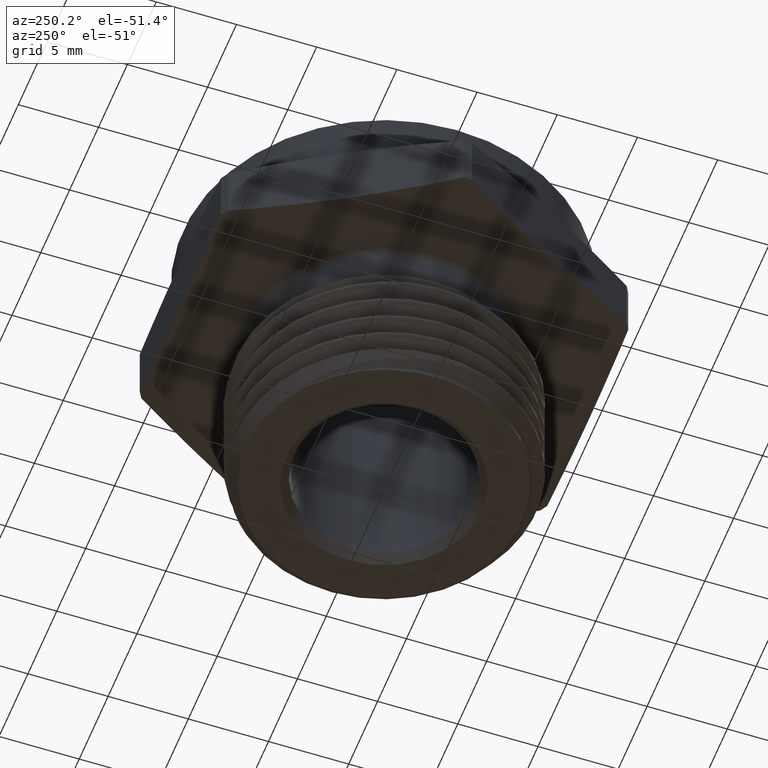
[diagram: clean part render]
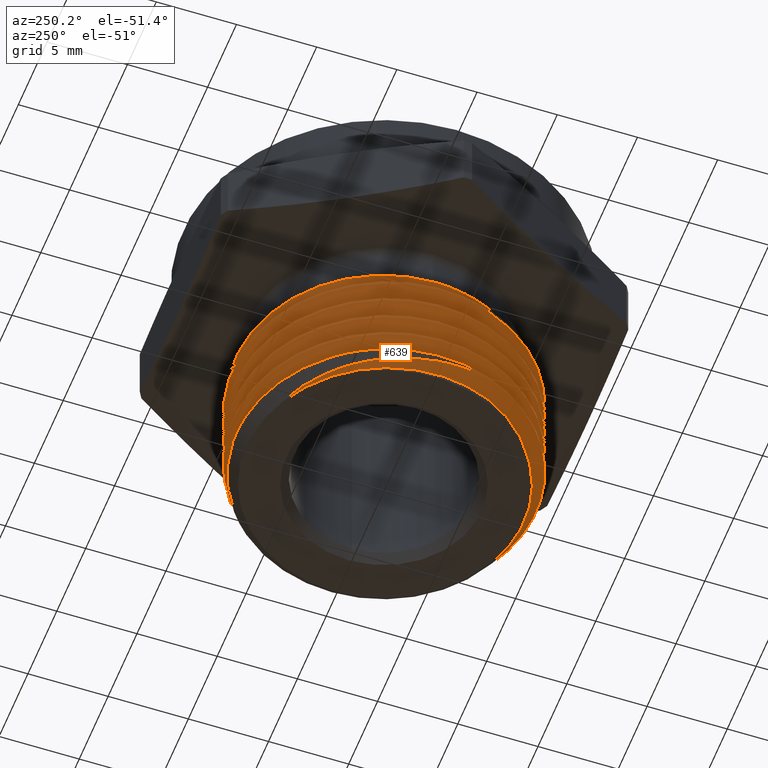
[diagram: same view with one face highlighted and labeled with its STEP entity id]
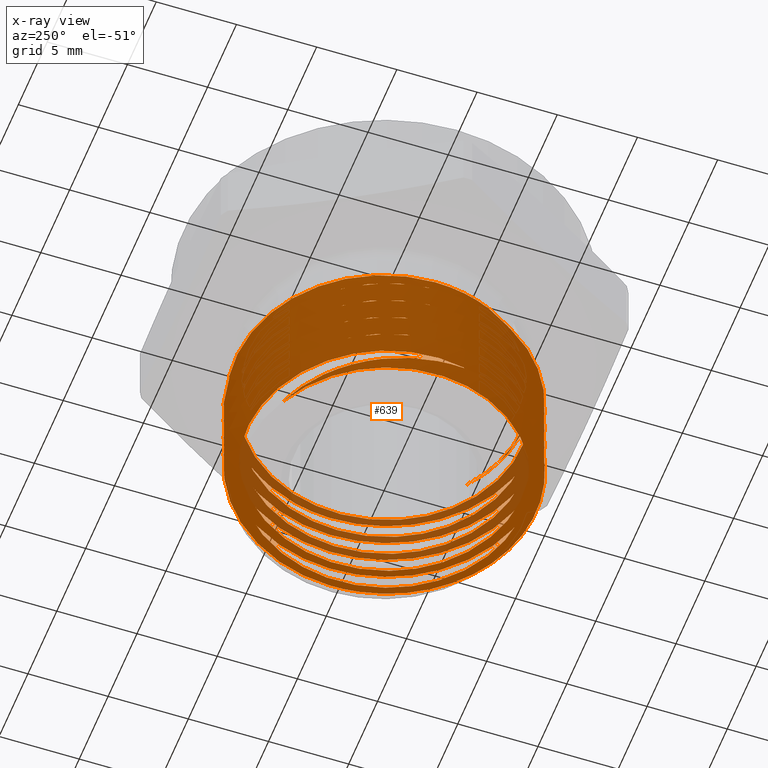
[diagram: x-ray of the same camera — body ghosted, the highlighted face saturated]
A machine part, auxiliary view. The second image highlights one B-rep face of the part: STEP entity #639.
The next image is the same camera in x-ray: the body ghosted, the highlighted face saturated — about 18% of this face is hidden behind the body in this view.
In plain terms, the highlighted face is a freeform B-spline surface patch.
Its self-contained STEP definition (entity closure, byte-faithful):
#21 = EDGE_LOOP ( 'NONE', ( #2757, #2758, #2759, #2760, #2761, #2762, #2763, #2764, #2765, #151, #152, #153, #154, #155, #156 ) ) ;
#151 = ORIENTED_EDGE ( 'NONE', *, *, #2611, .F. ) ;
#152 = ORIENTED_EDGE ( 'NONE', *, *, #2584, .F. ) ;
#153 = ORIENTED_EDGE ( 'NONE', *, *, #2613, .F. ) ;
#154 = ORIENTED_EDGE ( 'NONE', *, *, #2588, .F. ) ;
#155 = ORIENTED_EDGE ( 'NONE', *, *, #2615, .F. ) ;
#156 = ORIENTED_EDGE ( 'NONE', *, *, #2592, .F. ) ;
#294 =( BOUNDED_SURFACE ( )  B_SPLINE_SURFACE ( 1, 2, ( 
 ( #1108, #1110, #1111, #1112, #1113, #1114, #1115, #1116, #1117, #1118, #1119, #1120, #1121, #1122, #1123, #1124, #1125, #1126, #1127, #1128, #1129, #1130, #1131, #1132, #1133, #1134, #1135, #1136, #1137, #1138, #1139, #1140, #1141, #1142, #1143, #1144, #1145, #1146, #1147, #1148, #1149, #1150, #1151, #1152, #1153, #1154, #1155, #1156, #1157, #1158, #1159, #1160, #1161, #1162, #1163, #1164, #1165, #1166, #1167, #1168, #1169, #1170, #1171, #1172, #1173, #1174, #1175, #1176, #1177, #1178, #1179, #1180, #1181, #1182, #1183, #1184, #1185, #1186, #1187, #1188, #1189, #1190, #1191, #1192, #1193, #1194, #1195, #1196, #1197, #1198, #1199, #1200, #1201, #1202, #1203, #1204, #1205, #1206, #1207, #1208, #1209, #1210, #1211, #1212, #1213, #1214, #1215, #1216, #1217, #1218, #1219, #1220, #1221 ),
 ( #1222, #1223, #1224, #1225, #1226, #1227, #1228, #1229, #1230, #1231, #1232, #1233, #1234, #1235, #1236, #1237, #1238, #1239, #1240, #1241, #1242, #1243, #1244, #1245, #1246, #1247, #1248, #1249, #1250, #1251, #1252, #1253, #1254, #1255, #1256, #1257, #1258, #1259, #1260, #1261, #1262, #1263, #1264, #1265, #1266, #1267, #1268, #1269, #1270, #1271, #1272, #1273, #1274, #1275, #1276, #1277, #1278, #1279, #1280, #1281, #1282, #1283, #1284, #1285, #1286, #1287, #1288, #1289, #1290, #1291, #1292, #1293, #1294, #1295, #1296, #1297, #1298, #1299, #1300, #1301, #1302, #1303, #1304, #1305, #1306, #1307, #1308, #1309, #1310, #1311, #1312, #1313, #1314, #1315, #1316, #1317, #1318, #1319, #1320, #1321, #1322, #1323, #1324, #1325, #1326, #1327, #1328, #1329, #1330, #1331, #1332, #1333, #1334 ) ),
 .UNSPECIFIED., .F., .F., .T. ) 
 B_SPLINE_SURFACE_WITH_KNOTS ( ( 2, 2 ),
 ( 3, 2, 2, 2, 2, 2, 2, 2, 2, 2, 2, 2, 2, 2, 2, 2, 2, 2, 2, 2, 2, 2, 2, 2, 2, 2, 2, 2, 2, 2, 2, 2, 2, 2, 2, 2, 2, 2, 2, 2, 2, 2, 2, 2, 2, 2, 2, 2, 2, 2, 2, 2, 2, 2, 2, 2, 3 ),
 ( 0.0000000000000000000, 1.000000000000000000 ),
 ( 0.0000000000000000000, 0.01785714285714285600, 0.03571428571428571200, 0.05357142857142856800, 0.07142857142857142500, 0.08928571428571428800, 0.1071428571428571400, 0.1250000000000000000, 0.1428571428571428500, 0.1607142857142857300, 0.1785714285714285800, 0.1964285714285714200, 0.2142857142857142700, 0.2321428571428571500, 0.2500000000000000000, 0.2678571428571428500, 0.2857142857142857000, 0.3035714285714285500, 0.3214285714285714500, 0.3392857142857143000, 0.3571428571428571500, 0.3750000000000000000, 0.3928571428571428500, 0.4107142857142857000, 0.4285714285714285500, 0.4464285714285714500, 0.4642857142857143000, 0.4821428571428571500, 0.5000000000000000000, 0.5178571428571429000, 0.5357142857142857000, 0.5535714285714286000, 0.5714285714285714000, 0.5892857142857143000, 0.6071428571428571000, 0.6250000000000000000, 0.6428571428571429000, 0.6607142857142857000, 0.6785714285714286000, 0.6964285714285714000, 0.7142857142857143000, 0.7321428571428571000, 0.7500000000000000000, 0.7678571428571429000, 0.7857142857142857000, 0.8035714285714286000, 0.8214285714285714000, 0.8392857142857143000, 0.8571428571428571000, 0.8750000000000000000, 0.8928571428571429000, 0.9107142857142857000, 0.9285714285714286000, 0.9464285714285714000, 0.9642857142857143000, 0.9821428571428571000, 1.000000000000000000 ),
 .UNSPECIFIED. ) 
 GEOMETRIC_REPRESENTATION_ITEM ( )  RATIONAL_B_SPLINE_SURFACE ( (
 ( 1.000000000000000000, 0.9238795325112867400, 1.000000000000000000, 0.9238795325112867400, 1.000000000000000000, 0.9238795325112867400, 1.000000000000000000, 0.9238795325112867400, 1.000000000000000000, 0.9238795325112867400, 1.000000000000000000, 0.9238795325112867400, 1.000000000000000000, 0.9238795325112867400, 1.000000000000000000, 0.9238795325112867400, 1.000000000000000000, 0.9238795325112867400, 1.000000000000000000, 0.9238795325112867400, 1.000000000000000000, 0.9238795325112867400, 1.000000000000000000, 0.9238795325112867400, 1.000000000000000000, 0.9238795325112867400, 1.000000000000000000, 0.9238795325112867400, 1.000000000000000000, 0.9238795325112867400, 1.000000000000000000, 0.9238795325112867400, 1.000000000000000000, 0.9238795325112867400, 1.000000000000000000, 0.9238795325112867400, 1.000000000000000000, 0.9238795325112867400, 1.000000000000000000, 0.9238795325112867400, 1.000000000000000000, 0.9238795325112867400, 1.000000000000000000, 0.9238795325112867400, 1.000000000000000000, 0.9238795325112867400, 1.000000000000000000, 0.9238795325112867400, 1.000000000000000000, 0.9238795325112867400, 1.000000000000000000, 0.9238795325112867400, 1.000000000000000000, 0.9238795325112867400, 1.000000000000000000, 0.9238795325112867400, 1.000000000000000000, 0.9238795325112867400, 1.000000000000000000, 0.9238795325112867400, 1.000000000000000000, 0.9238795325112867400, 1.000000000000000000, 0.9238795325112867400, 1.000000000000000000, 0.9238795325112867400, 1.000000000000000000, 0.9238795325112867400, 1.000000000000000000, 0.9238795325112867400, 1.000000000000000000, 0.9238795325112867400, 1.000000000000000000, 0.9238795325112867400, 1.000000000000000000, 0.9238795325112867400, 1.000000000000000000, 0.9238795325112867400, 1.000000000000000000, 0.9238795325112867400, 1.000000000000000000, 0.9238795325112867400, 1.000000000000000000, 0.9238795325112867400, 1.000000000000000000, 0.9238795325112867400, 1.000000000000000000, 0.9238795325112867400, 1.000000000000000000, 0.9238795325112867400, 1.000000000000000000, 0.9238795325112867400, 1.000000000000000000, 0.9238795325112867400, 1.000000000000000000, 0.9238795325112867400, 1.000000000000000000, 0.9238795325112867400, 1.000000000000000000, 0.9238795325112867400, 1.000000000000000000, 0.9238795325112867400, 1.000000000000000000, 0.9238795325112867400, 1.000000000000000000, 0.9238795325112867400, 1.000000000000000000, 0.9238795325112867400, 1.000000000000000000, 0.9238795325112867400, 1.000000000000000000, 0.9238795325112867400, 1.000000000000000000),
 ( 1.000000000000000000, 0.9238795325112867400, 1.000000000000000000, 0.9238795325112867400, 1.000000000000000000, 0.9238795325112867400, 1.000000000000000000, 0.9238795325112867400, 1.000000000000000000, 0.9238795325112867400, 1.000000000000000000, 0.9238795325112867400, 1.000000000000000000, 0.9238795325112867400, 1.000000000000000000, 0.9238795325112867400, 1.000000000000000000, 0.9238795325112867400, 1.000000000000000000, 0.9238795325112867400, 1.000000000000000000, 0.9238795325112867400, 1.000000000000000000, 0.9238795325112867400, 1.000000000000000000, 0.9238795325112867400, 1.000000000000000000, 0.9238795325112867400, 1.000000000000000000, 0.9238795325112867400, 1.000000000000000000, 0.9238795325112867400, 1.000000000000000000, 0.9238795325112867400, 1.000000000000000000, 0.9238795325112867400, 1.000000000000000000, 0.9238795325112867400, 1.000000000000000000, 0.9238795325112867400, 1.000000000000000000, 0.9238795325112867400, 1.000000000000000000, 0.9238795325112867400, 1.000000000000000000, 0.9238795325112867400, 1.000000000000000000, 0.9238795325112867400, 1.000000000000000000, 0.9238795325112867400, 1.000000000000000000, 0.9238795325112867400, 1.000000000000000000, 0.9238795325112867400, 1.000000000000000000, 0.9238795325112867400, 1.000000000000000000, 0.9238795325112867400, 1.000000000000000000, 0.9238795325112867400, 1.000000000000000000, 0.9238795325112867400, 1.000000000000000000, 0.9238795325112867400, 1.000000000000000000, 0.9238795325112867400, 1.000000000000000000, 0.9238795325112867400, 1.000000000000000000, 0.9238795325112867400, 1.000000000000000000, 0.9238795325112867400, 1.000000000000000000, 0.9238795325112867400, 1.000000000000000000, 0.9238795325112867400, 1.000000000000000000, 0.9238795325112867400, 1.000000000000000000, 0.9238795325112867400, 1.000000000000000000, 0.9238795325112867400, 1.000000000000000000, 0.9238795325112867400, 1.000000000000000000, 0.9238795325112867400, 1.000000000000000000, 0.9238795325112867400, 1.000000000000000000, 0.9238795325112867400, 1.000000000000000000, 0.9238795325112867400, 1.000000000000000000, 0.9238795325112867400, 1.000000000000000000, 0.9238795325112867400, 1.000000000000000000, 0.9238795325112867400, 1.000000000000000000, 0.9238795325112867400, 1.000000000000000000, 0.9238795325112867400, 1.000000000000000000, 0.9238795325112867400, 1.000000000000000000, 0.9238795325112867400, 1.000000000000000000, 0.9238795325112867400, 1.000000000000000000, 0.9238795325112867400, 1.000000000000000000, 0.9238795325112867400, 1.000000000000000000) ) ) 
 REPRESENTATION_ITEM ( '' )  SURFACE ( )  );
#297 = B_SPLINE_CURVE_WITH_KNOTS ( 'NONE', 3,
 ( #1602, #1601, #1607, #1608, #1609, #1610, #1611, #1612, #1613, #1614, #1615, #1616, #1617, #1618, #1619, #1620 ),
 .UNSPECIFIED., .F., .F.,
 ( 4, 2, 2, 2, 2, 2, 2, 4 ),
 ( 0.003034115471411674400, 0.004281607550700988100, 0.005529099629990302100, 0.008024083788568930200, 0.009271575867858246000, 0.01051906794714756200, 0.01176656002643687600, 0.01301405210572619200 ),
 .UNSPECIFIED. ) ;
#300 =( BOUNDED_CURVE ( )  B_SPLINE_CURVE ( 2, ( #1633, #1635, #1646, #1647, #1648, #1649, #1650, #1651, #1652 ),
 .UNSPECIFIED., .F., .T. ) 
 B_SPLINE_CURVE_WITH_KNOTS ( ( 3, 2, 2, 2, 3 ),
 ( 0.6428571428571429000, 0.6607142857142857000, 0.6785714285714286000, 0.6964285714285714000, 0.7142857142857143000 ),
 .UNSPECIFIED. ) 
 CURVE ( )  GEOMETRIC_REPRESENTATION_ITEM ( )  RATIONAL_B_SPLINE_CURVE ( ( 1.000000000000000000, 0.9238795325112867400, 1.000000000000000000, 0.9238795325112867400, 1.000000000000000000, 0.9238795325112867400, 1.000000000000000000, 0.9238795325112867400, 1.000000000000000000 ) ) 
 REPRESENTATION_ITEM ( '' )  );
#302 =( BOUNDED_CURVE ( )  B_SPLINE_CURVE ( 2, ( #1644, #1655, #1666, #1667, #1668, #1669, #1670, #1671, #1672 ),
 .UNSPECIFIED., .F., .F. ) 
 B_SPLINE_CURVE_WITH_KNOTS ( ( 3, 2, 2, 2, 3 ),
 ( 0.5000000000000000000, 0.5178571428571429000, 0.5357142857142857000, 0.5535714285714286000, 0.5714285714285714000 ),
 .UNSPECIFIED. ) 
 CURVE ( )  GEOMETRIC_REPRESENTATION_ITEM ( )  RATIONAL_B_SPLINE_CURVE ( ( 1.000000000000000000, 0.9238795325112867400, 1.000000000000000000, 0.9238795325112867400, 1.000000000000000000, 0.9238795325112867400, 1.000000000000000000, 0.9238795325112867400, 1.000000000000000000 ) ) 
 REPRESENTATION_ITEM ( '' )  );
#304 =( BOUNDED_CURVE ( )  B_SPLINE_CURVE ( 2, ( #1665, #1676, #1689, #1690, #1691, #1692, #1693, #1694, #1695 ),
 .UNSPECIFIED., .F., .T. ) 
 B_SPLINE_CURVE_WITH_KNOTS ( ( 3, 2, 2, 2, 3 ),
 ( 0.3571428571428571500, 0.3750000000000000000, 0.3928571428571428500, 0.4107142857142857000, 0.4285714285714285500 ),
 .UNSPECIFIED. ) 
 CURVE ( )  GEOMETRIC_REPRESENTATION_ITEM ( )  RATIONAL_B_SPLINE_CURVE ( ( 1.000000000000000000, 0.9238795325112867400, 1.000000000000000000, 0.9238795325112867400, 1.000000000000000000, 0.9238795325112867400, 1.000000000000000000, 0.9238795325112867400, 1.000000000000000000 ) ) 
 REPRESENTATION_ITEM ( '' )  );
#306 =( BOUNDED_CURVE ( )  B_SPLINE_CURVE ( 2, ( #1687, #1699, #1711, #1712, #1713, #1714, #1715, #1716, #1717 ),
 .UNSPECIFIED., .F., .T. ) 
 B_SPLINE_CURVE_WITH_KNOTS ( ( 3, 2, 2, 2, 3 ),
 ( 0.2142857142857142700, 0.2321428571428571500, 0.2500000000000000000, 0.2678571428571428500, 0.2857142857142857000 ),
 .UNSPECIFIED. ) 
 CURVE ( )  GEOMETRIC_REPRESENTATION_ITEM ( )  RATIONAL_B_SPLINE_CURVE ( ( 1.000000000000000000, 0.9238795325112867400, 1.000000000000000000, 0.9238795325112867400, 1.000000000000000000, 0.9238795325112867400, 1.000000000000000000, 0.9238795325112867400, 1.000000000000000000 ) ) 
 REPRESENTATION_ITEM ( '' )  );
#309 =( BOUNDED_CURVE ( )  B_SPLINE_CURVE ( 2, ( #1757, #1758, #1765, #1766, #1767, #1768, #1769, #1770, #1771 ),
 .UNSPECIFIED., .F., .F. ) 
 B_SPLINE_CURVE_WITH_KNOTS ( ( 3, 2, 2, 2, 3 ),
 ( 0.7142857142857143000, 0.7321428571428571000, 0.7500000000000000000, 0.7678571428571429000, 0.7857142857142857000 ),
 .UNSPECIFIED. ) 
 CURVE ( )  GEOMETRIC_REPRESENTATION_ITEM ( )  RATIONAL_B_SPLINE_CURVE ( ( 1.000000000000000000, 0.9238795325112867400, 1.000000000000000000, 0.9238795325112867400, 1.000000000000000000, 0.9238795325112867400, 1.000000000000000000, 0.9238795325112867400, 1.000000000000000000 ) ) 
 REPRESENTATION_ITEM ( '' )  );
#311 =( BOUNDED_CURVE ( )  B_SPLINE_CURVE ( 2, ( #1772, #1773, #1783, #1784, #1785, #1786, #1787, #1788, #1789 ),
 .UNSPECIFIED., .F., .F. ) 
 B_SPLINE_CURVE_WITH_KNOTS ( ( 3, 2, 2, 2, 3 ),
 ( 0.5714285714285714000, 0.5892857142857143000, 0.6071428571428571000, 0.6250000000000000000, 0.6428571428571429000 ),
 .UNSPECIFIED. ) 
 CURVE ( )  GEOMETRIC_REPRESENTATION_ITEM ( )  RATIONAL_B_SPLINE_CURVE ( ( 1.000000000000000000, 0.9238795325112867400, 1.000000000000000000, 0.9238795325112867400, 1.000000000000000000, 0.9238795325112867400, 1.000000000000000000, 0.9238795325112867400, 1.000000000000000000 ) ) 
 REPRESENTATION_ITEM ( '' )  );
#313 =( BOUNDED_CURVE ( )  B_SPLINE_CURVE ( 2, ( #1791, #1790, #1801, #1802, #1803, #1804, #1805, #1806, #1807 ),
 .UNSPECIFIED., .F., .T. ) 
 B_SPLINE_CURVE_WITH_KNOTS ( ( 3, 2, 2, 2, 3 ),
 ( 0.4285714285714285500, 0.4464285714285714500, 0.4642857142857143000, 0.4821428571428571500, 0.5000000000000000000 ),
 .UNSPECIFIED. ) 
 CURVE ( )  GEOMETRIC_REPRESENTATION_ITEM ( )  RATIONAL_B_SPLINE_CURVE ( ( 1.000000000000000000, 0.9238795325112867400, 1.000000000000000000, 0.9238795325112867400, 1.000000000000000000, 0.9238795325112867400, 1.000000000000000000, 0.9238795325112867400, 1.000000000000000000 ) ) 
 REPRESENTATION_ITEM ( '' )  );
#335 = VERTEX_POINT ( 'NONE', #3082 ) ;
#337 = VERTEX_POINT ( 'NONE', #3080 ) ;
#371 = VERTEX_POINT ( 'NONE', #3070 ) ;
#387 = VERTEX_POINT ( 'NONE', #3056 ) ;
#391 = VERTEX_POINT ( 'NONE', #3052 ) ;
#395 = VERTEX_POINT ( 'NONE', #3048 ) ;
#397 = VERTEX_POINT ( 'NONE', #3046 ) ;
#398 = VERTEX_POINT ( 'NONE', #3045 ) ;
#399 = VERTEX_POINT ( 'NONE', #3044 ) ;
#402 = VERTEX_POINT ( 'NONE', #3040 ) ;
#544 =( BOUNDED_CURVE ( )  B_SPLINE_CURVE ( 2, ( #1809, #1808, #1819, #1820, #1821, #1822, #1823, #1824, #1825 ),
 .UNSPECIFIED., .F., .F. ) 
 B_SPLINE_CURVE_WITH_KNOTS ( ( 3, 2, 2, 2, 3 ),
 ( 0.2857142857142857000, 0.3035714285714285500, 0.3214285714285714500, 0.3392857142857143000, 0.3571428571428571500 ),
 .UNSPECIFIED. ) 
 CURVE ( )  GEOMETRIC_REPRESENTATION_ITEM ( )  RATIONAL_B_SPLINE_CURVE ( ( 1.000000000000000000, 0.9238795325112867400, 1.000000000000000000, 0.9238795325112867400, 1.000000000000000000, 0.9238795325112867400, 1.000000000000000000, 0.9238795325112867400, 1.000000000000000000 ) ) 
 REPRESENTATION_ITEM ( '' )  );
#546 =( BOUNDED_CURVE ( )  B_SPLINE_CURVE ( 2, ( #1827, #1826, #1837, #1838, #1839, #1840, #1841, #1842, #1843 ),
 .UNSPECIFIED., .F., .F. ) 
 B_SPLINE_CURVE_WITH_KNOTS ( ( 3, 2, 2, 2, 3 ),
 ( 0.1502470123688569600, 0.1607142857142857300, 0.1785714285714285800, 0.1964285714285714200, 0.2142857142857142700 ),
 .UNSPECIFIED. ) 
 CURVE ( )  GEOMETRIC_REPRESENTATION_ITEM ( )  RATIONAL_B_SPLINE_CURVE ( ( 0.9630701254887809000, 0.9553806705383736100, 1.000000000000000000, 0.9238795325112867400, 1.000000000000000000, 0.9238795325112867400, 1.000000000000000000, 0.9238795325112867400, 1.000000000000000000 ) ) 
 REPRESENTATION_ITEM ( '' )  );
#548 = B_SPLINE_CURVE_WITH_KNOTS ( 'NONE', 3,
 ( #1850, #1849, #1861, #1862, #1863, #1864, #1865, #1866, #1867, #1868, #1869, #1870, #1871, #1872, #1873, #1874, #1875, #1876, #1877, #1878, #1879, #1880, #1881, #1882, #1883, #1884, #1885, #1886, #1887, #1888, #1889, #1890, #1891, #1892, #1893, #1894, #1895, #1896, #1897, #1898, #1899, #1900, #1901, #1902, #1903, #1904, #1905 ),
 .UNSPECIFIED., .F., .F.,
 ( 4, 2, 2, 2, 2, 2, 2, 2, 2, 2, 2, 2, 2, 2, 2, 2, 2, 2, 1, 2, 2, 2, 2, 4 ),
 ( 0.01937311682326229100, 0.02027563010142229000, 0.02117814337958229300, 0.02298316993590229400, 0.02478819649222229600, 0.02569070977038229500, 0.02659322304854229400, 0.02839824960486230000, 0.02930076288302229500, 0.03020327616118229800, 0.03200830271750230300, 0.03381332927382230100, 0.03471584255198230400, 0.03561835583014230600, 0.03742338238646230500, 0.03922840894278230300, 0.04103343549910230800, 0.04193594877726229700, 0.04283846205542229900, 0.04374097533358229500, 0.04464348861174229100, 0.04644851516806228900, 0.04735102844622228500, 0.04825354172438228700 ),
 .UNSPECIFIED. ) ;
#549 = B_SPLINE_CURVE_WITH_KNOTS ( 'NONE', 3,
 ( #1907, #1860, #1911, #1912, #1913, #1914, #1915, #1916, #1917, #1918, #1919, #1920, #1921, #1922, #1923, #1924, #1925, #1926, #1927, #1928, #1929, #1930, #1931, #1932, #1933, #1934, #1935, #1936 ),
 .UNSPECIFIED., .F., .F.,
 ( 4, 2, 2, 2, 2, 2, 2, 2, 2, 2, 2, 2, 2, 4 ),
 ( 2.492201365644436600E-016, 0.001210819801454124800, 0.002421639602908001900, 0.004843279205815755700, 0.006054099007269632200, 0.007264918808723508700, 0.008475738610177386100, 0.009686558411631261700, 0.01089737821308513900, 0.01210819801453901600, 0.01331901781599289400, 0.01452983761744677300, 0.01695147722035453300, 0.01937311682326229100 ),
 .UNSPECIFIED. ) ;
#565 =( BOUNDED_CURVE ( )  B_SPLINE_CURVE ( 2, ( #791, #792, #796 ),
 .UNSPECIFIED., .F., .F. ) 
 B_SPLINE_CURVE_WITH_KNOTS ( ( 3, 3 ),
 ( 0.7857142857142857000, 0.7857874089407209700 ),
 .UNSPECIFIED. ) 
 CURVE ( )  GEOMETRIC_REPRESENTATION_ITEM ( )  RATIONAL_B_SPLINE_CURVE ( ( 1.000000000000000000, 0.9996882942458900100, 0.9993791412999891700 ) ) 
 REPRESENTATION_ITEM ( '' )  );
#566 =( BOUNDED_CURVE ( )  B_SPLINE_CURVE ( 2, ( #804, #805, #810, #811, #812, #813, #814, #815, #816, #817, #818, #819, #820, #821, #822, #823, #824, #825, #826, #827, #828, #829, #830, #831, #832, #833, #834, #835, #836, #837, #838, #839, #840, #841, #842, #843, #844, #845, #846, #847, #848, #849, #850, #851, #852, #853, #854, #855, #856, #857, #858, #859, #860, #861, #862, #863, #864, #865, #866, #867, #868, #869, #870, #871, #872, #873, #874, #875, #876, #877, #878, #879, #880, #881, #882, #883, #884, #885, #886, #887, #888, #889, #890, #891, #892, #893, #894, #895, #896, #897, #898 ),
 .UNSPECIFIED., .F., .F. ) 
 B_SPLINE_CURVE_WITH_KNOTS ( ( 3, 2, 2, 2, 2, 2, 2, 2, 2, 2, 2, 2, 2, 2, 2, 2, 2, 2, 2, 2, 2, 2, 2, 2, 2, 2, 2, 2, 2, 2, 2, 2, 2, 2, 2, 2, 2, 2, 2, 2, 2, 2, 2, 2, 2, 3 ),
 ( 0.1175275786737726100, 0.1250000000000000000, 0.1428571428571428500, 0.1607142857142857300, 0.1785714285714285800, 0.1964285714285714200, 0.2142857142857142700, 0.2321428571428571500, 0.2500000000000000000, 0.2678571428571428500, 0.2857142857142857000, 0.3035714285714285500, 0.3214285714285714500, 0.3392857142857143000, 0.3571428571428572100, 0.3750000000000000000, 0.3928571428571428500, 0.4107142857142857000, 0.4285714285714285500, 0.4464285714285714000, 0.4642857142857143000, 0.4821428571428571500, 0.4999999999999999400, 0.5178571428571429000, 0.5357142857142857000, 0.5535714285714286000, 0.5714285714285714000, 0.5892857142857144100, 0.6071428571428569800, 0.6250000000000000000, 0.6428571428571429000, 0.6607142857142857000, 0.6785714285714286000, 0.6964285714285714000, 0.7142857142857143000, 0.7321428571428571000, 0.7500000000000000000, 0.7678571428571429000, 0.7857142857142857000, 0.8035714285714286000, 0.8214285714285715100, 0.8392857142857143000, 0.8571428571428571000, 0.8750000000000000000, 0.8928571428571429000, 0.9073304622085162100 ),
 .UNSPECIFIED. ) 
 CURVE ( )  GEOMETRIC_REPRESENTATION_ITEM ( )  RATIONAL_B_SPLINE_CURVE ( ( 0.9629520908465139000, 0.9681469645409966900, 1.000000000000000000, 0.9238795325112867400, 1.000000000000000000, 0.9238795325112867400, 1.000000000000000000, 0.9238795325112867400, 1.000000000000000000, 0.9238795325112867400, 1.000000000000000000, 0.9238795325112867400, 1.000000000000000000, 0.9238795325112867400, 1.000000000000000000, 0.9238795325112867400, 1.000000000000000000, 0.9238795325112867400, 1.000000000000000000, 0.9238795325112867400, 1.000000000000000000, 0.9238795325112867400, 1.000000000000000000, 0.9238795325112867400, 1.000000000000000000, 0.9238795325112867400, 1.000000000000000000, 0.9238795325112867400, 1.000000000000000000, 0.9238795325112867400, 1.000000000000000000, 0.9238795325112867400, 1.000000000000000000, 0.9238795325112867400, 1.000000000000000000, 0.9238795325112867400, 1.000000000000000000, 0.9238795325112867400, 1.000000000000000000, 0.9238795325112867400, 1.000000000000000000, 0.9238795325112867400, 1.000000000000000000, 0.9238795325112867400, 1.000000000000000000, 0.9238795325112867400, 1.000000000000000000, 0.9238795325112867400, 1.000000000000000000, 0.9238795325112867400, 1.000000000000000000, 0.9238795325112867400, 1.000000000000000000, 0.9238795325112867400, 1.000000000000000000, 0.9238795325112867400, 1.000000000000000000, 0.9238795325112867400, 1.000000000000000000, 0.9238795325112867400, 1.000000000000000000, 0.9238795325112867400, 1.000000000000000000, 0.9238795325112867400, 1.000000000000000000, 0.9238795325112867400, 1.000000000000000000, 0.9238795325112867400, 1.000000000000000000, 0.9238795325112867400, 1.000000000000000000, 0.9238795325112867400, 1.000000000000000000, 0.9238795325112867400, 1.000000000000000000, 0.9238795325112867400, 1.000000000000000000, 0.9238795325112867400, 1.000000000000000000, 0.9238795325112867400, 1.000000000000000000, 0.9238795325112867400, 1.000000000000000000, 0.9238795325112867400, 1.000000000000000000, 0.9238795325112867400, 1.000000000000000000, 0.9238795325112867400, 1.000000000000000000, 0.9383039132321606700, 0.9766179091146716100 ) ) 
 REPRESENTATION_ITEM ( '' )  );
#568 = B_SPLINE_CURVE_WITH_KNOTS ( 'NONE', 3,
 ( #900, #899, #990, #991, #992, #993 ),
 .UNSPECIFIED., .F., .F.,
 ( 4, 2, 4 ),
 ( 0.0000000000000000000, 0.001517057735705836800, 0.003034115471411674400 ),
 .UNSPECIFIED. ) ;
#639 = ADVANCED_FACE ( 'NONE', ( #2427 ), #294, .F. ) ;
#791 = CARTESIAN_POINT ( 'NONE',  ( 0.3715000000000000000, 8.248957072964913800E-016, -0.1282072540797572200 ) ) ;
#792 = CARTESIAN_POINT ( 'NONE',  ( 0.3715000000000000000, 0.0005823408345583639100, -0.1281924713667198000 ) ) ;
#796 = CARTESIAN_POINT ( 'NONE',  ( 0.3714981743202459600, 0.001164678807291214900, -0.1281776695296633900 ) ) ;
#804 = CARTESIAN_POINT ( 'NONE',  ( -0.1492037028189109300, 0.3030071246111650200, -0.4400000000000000000 ) ) ;
#805 = CARTESIAN_POINT ( 'NONE',  ( -0.1993224943717656400, 0.2783281363197474000, -0.4383151779400899000 ) ) ;
#810 = CARTESIAN_POINT ( 'NONE',  ( -0.2388253153457568800, 0.2388253153457559100, -0.4367553256649072100 ) ) ;
#811 = CARTESIAN_POINT ( 'NONE',  ( -0.3377500000000002200, 0.1399006306915122900, -0.4328490756649071600 ) ) ;
#812 = CARTESIAN_POINT ( 'NONE',  ( -0.3377499999999999900, -7.913180987754949500E-016, -0.4289428256649072100 ) ) ;
#813 = CARTESIAN_POINT ( 'NONE',  ( -0.3377499999999996100, -0.1399006306915136500, -0.4250365756649072100 ) ) ;
#814 = CARTESIAN_POINT ( 'NONE',  ( -0.2388253153457558500, -0.2388253153457569300, -0.4211303256649072100 ) ) ;
#815 = CARTESIAN_POINT ( 'NONE',  ( -0.1399006306915121000, -0.3377500000000003300, -0.4172240756649072100 ) ) ;
#816 = CARTESIAN_POINT ( 'NONE',  ( 7.706368759548940400E-016, -0.3377499999999999900, -0.4133178256649072100 ) ) ;
#817 = CARTESIAN_POINT ( 'NONE',  ( 0.1399006306915136200, -0.3377499999999996100, -0.4094115756649072100 ) ) ;
#818 = CARTESIAN_POINT ( 'NONE',  ( 0.2388253153457569300, -0.2388253153457558500, -0.4055053256649072700 ) ) ;
#819 = CARTESIAN_POINT ( 'NONE',  ( 0.3377500000000003300, -0.1399006306915121000, -0.4015990756649072100 ) ) ;
#820 = CARTESIAN_POINT ( 'NONE',  ( 0.3377499999999999900, 7.499556531342931300E-016, -0.3976928256649072100 ) ) ;
#821 = CARTESIAN_POINT ( 'NONE',  ( 0.3377499999999997200, 0.1399006306915135700, -0.3937865756649072100 ) ) ;
#822 = CARTESIAN_POINT ( 'NONE',  ( 0.2388253153457559100, 0.2388253153457569300, -0.3898803256649072100 ) ) ;
#823 = CARTESIAN_POINT ( 'NONE',  ( 0.1399006306915122600, 0.3377500000000002200, -0.3859740756649072700 ) ) ;
#824 = CARTESIAN_POINT ( 'NONE',  ( -7.292744303136922200E-016, 0.3377499999999999900, -0.3820678256649072100 ) ) ;
#825 = CARTESIAN_POINT ( 'NONE',  ( -0.1399006306915137300, 0.3377499999999995500, -0.3781615756649071600 ) ) ;
#826 = CARTESIAN_POINT ( 'NONE',  ( -0.2388253153457568800, 0.2388253153457559100, -0.3742553256649072100 ) ) ;
#827 = CARTESIAN_POINT ( 'NONE',  ( -0.3377500000000002200, 0.1399006306915122900, -0.3703490756649072100 ) ) ;
#828 = CARTESIAN_POINT ( 'NONE',  ( -0.3377499999999999900, -7.913180987754949500E-016, -0.3664428256649071600 ) ) ;
#829 = CARTESIAN_POINT ( 'NONE',  ( -0.3377499999999996100, -0.1399006306915136500, -0.3625365756649071600 ) ) ;
#830 = CARTESIAN_POINT ( 'NONE',  ( -0.2388253153457558500, -0.2388253153457569300, -0.3586303256649072100 ) ) ;
#831 = CARTESIAN_POINT ( 'NONE',  ( -0.1399006306915121000, -0.3377500000000003300, -0.3547240756649071000 ) ) ;
#832 = CARTESIAN_POINT ( 'NONE',  ( 7.706368759548940400E-016, -0.3377499999999999900, -0.3508178256649072100 ) ) ;
#833 = CARTESIAN_POINT ( 'NONE',  ( 0.1399006306915136200, -0.3377499999999996100, -0.3469115756649072100 ) ) ;
#834 = CARTESIAN_POINT ( 'NONE',  ( 0.2388253153457569300, -0.2388253153457558500, -0.3430053256649072100 ) ) ;
#835 = CARTESIAN_POINT ( 'NONE',  ( 0.3377500000000003300, -0.1399006306915121000, -0.3390990756649072700 ) ) ;
#836 = CARTESIAN_POINT ( 'NONE',  ( 0.3377499999999999900, 7.499556531342931300E-016, -0.3351928256649072100 ) ) ;
#837 = CARTESIAN_POINT ( 'NONE',  ( 0.3377499999999997200, 0.1399006306915135700, -0.3312865756649072100 ) ) ;
#838 = CARTESIAN_POINT ( 'NONE',  ( 0.2388253153457559100, 0.2388253153457569300, -0.3273803256649072700 ) ) ;
#839 = CARTESIAN_POINT ( 'NONE',  ( 0.1399006306915122600, 0.3377500000000002200, -0.3234740756649072100 ) ) ;
#840 = CARTESIAN_POINT ( 'NONE',  ( -7.292744303136922200E-016, 0.3377499999999999900, -0.3195678256649072100 ) ) ;
#841 = CARTESIAN_POINT ( 'NONE',  ( -0.1399006306915137300, 0.3377499999999995500, -0.3156615756649072100 ) ) ;
#842 = CARTESIAN_POINT ( 'NONE',  ( -0.2388253153457568800, 0.2388253153457559100, -0.3117553256649072100 ) ) ;
#843 = CARTESIAN_POINT ( 'NONE',  ( -0.3377500000000002200, 0.1399006306915122900, -0.3078490756649072100 ) ) ;
#844 = CARTESIAN_POINT ( 'NONE',  ( -0.3377499999999999900, -7.913180987754949500E-016, -0.3039428256649072100 ) ) ;
#845 = CARTESIAN_POINT ( 'NONE',  ( -0.3377499999999996100, -0.1399006306915136500, -0.3000365756649072700 ) ) ;
#846 = CARTESIAN_POINT ( 'NONE',  ( -0.2388253153457558500, -0.2388253153457569300, -0.2961303256649072100 ) ) ;
#847 = CARTESIAN_POINT ( 'NONE',  ( -0.1399006306915121000, -0.3377500000000003300, -0.2922240756649072700 ) ) ;
#848 = CARTESIAN_POINT ( 'NONE',  ( 7.706368759548940400E-016, -0.3377499999999999900, -0.2883178256649072100 ) ) ;
#849 = CARTESIAN_POINT ( 'NONE',  ( 0.1399006306915136200, -0.3377499999999996100, -0.2844115756649072100 ) ) ;
#850 = CARTESIAN_POINT ( 'NONE',  ( 0.2388253153457569300, -0.2388253153457558500, -0.2805053256649072100 ) ) ;
#851 = CARTESIAN_POINT ( 'NONE',  ( 0.3377500000000003300, -0.1399006306915121000, -0.2765990756649072100 ) ) ;
#852 = CARTESIAN_POINT ( 'NONE',  ( 0.3377499999999999900, 7.499556531342931300E-016, -0.2726928256649072100 ) ) ;
#853 = CARTESIAN_POINT ( 'NONE',  ( 0.3377499999999997200, 0.1399006306915135700, -0.2687865756649072100 ) ) ;
#854 = CARTESIAN_POINT ( 'NONE',  ( 0.2388253153457559100, 0.2388253153457569300, -0.2648803256649072100 ) ) ;
#855 = CARTESIAN_POINT ( 'NONE',  ( 0.1399006306915122600, 0.3377500000000002200, -0.2609740756649072100 ) ) ;
#856 = CARTESIAN_POINT ( 'NONE',  ( -7.292744303136922200E-016, 0.3377499999999999900, -0.2570678256649072100 ) ) ;
#857 = CARTESIAN_POINT ( 'NONE',  ( -0.1399006306915137300, 0.3377499999999995500, -0.2531615756649072700 ) ) ;
#858 = CARTESIAN_POINT ( 'NONE',  ( -0.2388253153457568800, 0.2388253153457559100, -0.2492553256649072100 ) ) ;
#859 = CARTESIAN_POINT ( 'NONE',  ( -0.3377500000000002200, 0.1399006306915122900, -0.2453490756649072400 ) ) ;
#860 = CARTESIAN_POINT ( 'NONE',  ( -0.3377499999999999900, -7.913180987754949500E-016, -0.2414428256649072100 ) ) ;
#861 = CARTESIAN_POINT ( 'NONE',  ( -0.3377499999999996100, -0.1399006306915136500, -0.2375365756649072100 ) ) ;
#862 = CARTESIAN_POINT ( 'NONE',  ( -0.2388253153457558500, -0.2388253153457569300, -0.2336303256649072100 ) ) ;
#863 = CARTESIAN_POINT ( 'NONE',  ( -0.1399006306915121000, -0.3377500000000003300, -0.2297240756649072100 ) ) ;
#864 = CARTESIAN_POINT ( 'NONE',  ( 7.706368759548940400E-016, -0.3377499999999999900, -0.2258178256649072100 ) ) ;
#865 = CARTESIAN_POINT ( 'NONE',  ( 0.1399006306915136200, -0.3377499999999996100, -0.2219115756649072100 ) ) ;
#866 = CARTESIAN_POINT ( 'NONE',  ( 0.2388253153457569300, -0.2388253153457558500, -0.2180053256649071800 ) ) ;
#867 = CARTESIAN_POINT ( 'NONE',  ( 0.3377500000000003300, -0.1399006306915121000, -0.2140990756649073000 ) ) ;
#868 = CARTESIAN_POINT ( 'NONE',  ( 0.3377499999999999900, 7.499556531342931300E-016, -0.2101928256649072100 ) ) ;
#869 = CARTESIAN_POINT ( 'NONE',  ( 0.3377499999999997200, 0.1399006306915135700, -0.2062865756649072100 ) ) ;
#870 = CARTESIAN_POINT ( 'NONE',  ( 0.2388253153457559100, 0.2388253153457569300, -0.2023803256649072100 ) ) ;
#871 = CARTESIAN_POINT ( 'NONE',  ( 0.1399006306915122600, 0.3377500000000002200, -0.1984740756649071800 ) ) ;
#872 = CARTESIAN_POINT ( 'NONE',  ( -7.292744303136922200E-016, 0.3377499999999999900, -0.1945678256649072100 ) ) ;
#873 = CARTESIAN_POINT ( 'NONE',  ( -0.1399006306915137300, 0.3377499999999995500, -0.1906615756649072100 ) ) ;
#874 = CARTESIAN_POINT ( 'NONE',  ( -0.2388253153457568800, 0.2388253153457559100, -0.1867553256649072100 ) ) ;
#875 = CARTESIAN_POINT ( 'NONE',  ( -0.3377500000000002200, 0.1399006306915122900, -0.1828490756649072400 ) ) ;
#876 = CARTESIAN_POINT ( 'NONE',  ( -0.3377499999999999900, -7.913180987754949500E-016, -0.1789428256649071800 ) ) ;
#877 = CARTESIAN_POINT ( 'NONE',  ( -0.3377499999999996100, -0.1399006306915136500, -0.1750365756649073000 ) ) ;
#878 = CARTESIAN_POINT ( 'NONE',  ( -0.2388253153457558500, -0.2388253153457569300, -0.1711303256649072400 ) ) ;
#879 = CARTESIAN_POINT ( 'NONE',  ( -0.1399006306915121000, -0.3377500000000003300, -0.1672240756649071800 ) ) ;
#880 = CARTESIAN_POINT ( 'NONE',  ( 7.706368759548940400E-016, -0.3377499999999999900, -0.1633178256649072100 ) ) ;
#881 = CARTESIAN_POINT ( 'NONE',  ( 0.1399006306915136200, -0.3377499999999996100, -0.1594115756649072400 ) ) ;
#882 = CARTESIAN_POINT ( 'NONE',  ( 0.2388253153457569300, -0.2388253153457558500, -0.1555053256649071800 ) ) ;
#883 = CARTESIAN_POINT ( 'NONE',  ( 0.3377500000000003300, -0.1399006306915121000, -0.1515990756649072100 ) ) ;
#884 = CARTESIAN_POINT ( 'NONE',  ( 0.3377499999999999900, 7.499556531342931300E-016, -0.1476928256649072100 ) ) ;
#885 = CARTESIAN_POINT ( 'NONE',  ( 0.3377499999999997200, 0.1399006306915135700, -0.1437865756649072400 ) ) ;
#886 = CARTESIAN_POINT ( 'NONE',  ( 0.2388253153457559100, 0.2388253153457569300, -0.1398803256649071800 ) ) ;
#887 = CARTESIAN_POINT ( 'NONE',  ( 0.1399006306915122600, 0.3377500000000002200, -0.1359740756649072400 ) ) ;
#888 = CARTESIAN_POINT ( 'NONE',  ( -7.292744303136922200E-016, 0.3377499999999999900, -0.1320678256649072400 ) ) ;
#889 = CARTESIAN_POINT ( 'NONE',  ( -0.1399006306915137300, 0.3377499999999995500, -0.1281615756649071800 ) ) ;
#890 = CARTESIAN_POINT ( 'NONE',  ( -0.2388253153457568800, 0.2388253153457559100, -0.1242553256649072100 ) ) ;
#891 = CARTESIAN_POINT ( 'NONE',  ( -0.3377500000000002200, 0.1399006306915122900, -0.1203490756649072300 ) ) ;
#892 = CARTESIAN_POINT ( 'NONE',  ( -0.3377499999999999900, -7.913180987754949500E-016, -0.1164428256649072500 ) ) ;
#893 = CARTESIAN_POINT ( 'NONE',  ( -0.3377499999999996100, -0.1399006306915136500, -0.1125365756649072000 ) ) ;
#894 = CARTESIAN_POINT ( 'NONE',  ( -0.2388253153457558500, -0.2388253153457569300, -0.1086303256649072300 ) ) ;
#895 = CARTESIAN_POINT ( 'NONE',  ( -0.1399006306915121000, -0.3377500000000003300, -0.1047240756649072400 ) ) ;
#896 = CARTESIAN_POINT ( 'NONE',  ( 7.706368759548940400E-016, -0.3377499999999999900, -0.1008178256649072000 ) ) ;
#897 = CARTESIAN_POINT ( 'NONE',  ( 0.1116471554452995900, -0.3377499999999997200, -0.09770045801043345000 ) ) ;
#898 = CARTESIAN_POINT ( 'NONE',  ( 0.2012982638886934600, -0.2712085386845293800, -0.09442766952966351300 ) ) ;
#899 = CARTESIAN_POINT ( 'NONE',  ( -0.3572812714437055300, -0.09899783464271473500, -0.4075445095535574200 ) ) ;
#900 = CARTESIAN_POINT ( 'NONE',  ( -0.3521509424055847500, -0.1183298937836876300, -0.4062500000000005600 ) ) ;
#990 = CARTESIAN_POINT ( 'NONE',  ( -0.3608163780158125700, -0.07943466029677633000, -0.4088266923736567600 ) ) ;
#991 = CARTESIAN_POINT ( 'NONE',  ( -0.3647506250537518900, -0.03985390280043867000, -0.4113657276102354900 ) ) ;
#992 = CARTESIAN_POINT ( 'NONE',  ( -0.3651224823896728200, -0.01974961765298528100, -0.4126275176103276200 ) ) ;
#993 = CARTESIAN_POINT ( 'NONE',  ( -0.3639115553709050300, -8.526122875456338700E-016, -0.4138384446290958600 ) ) ;
#1108 = CARTESIAN_POINT ( 'NONE',  ( -0.3377499999999999900, -7.913180987754949500E-016, -0.4914428256649072100 ) ) ;
#1110 = CARTESIAN_POINT ( 'NONE',  ( -0.3377499999999996600, -0.1399006306915136200, -0.4875365756649072700 ) ) ;
#1111 = CARTESIAN_POINT ( 'NONE',  ( -0.2388253153457558500, -0.2388253153457569300, -0.4836303256649071600 ) ) ;
#1112 = CARTESIAN_POINT ( 'NONE',  ( -0.1399006306915121000, -0.3377500000000003300, -0.4797240756649072700 ) ) ;
#1113 = CARTESIAN_POINT ( 'NONE',  ( 7.706368759548940400E-016, -0.3377499999999999900, -0.4758178256649072100 ) ) ;
#1114 = CARTESIAN_POINT ( 'NONE',  ( 0.1399006306915136200, -0.3377499999999996600, -0.4719115756649073200 ) ) ;
#1115 = CARTESIAN_POINT ( 'NONE',  ( 0.2388253153457569300, -0.2388253153457558500, -0.4680053256649072100 ) ) ;
#1116 = CARTESIAN_POINT ( 'NONE',  ( 0.3377500000000003300, -0.1399006306915121000, -0.4640990756649072100 ) ) ;
#1117 = CARTESIAN_POINT ( 'NONE',  ( 0.3377499999999999900, 7.499556531342931300E-016, -0.4601928256649072100 ) ) ;
#1118 = CARTESIAN_POINT ( 'NONE',  ( 0.3377499999999997200, 0.1399006306915135700, -0.4562865756649071600 ) ) ;
#1119 = CARTESIAN_POINT ( 'NONE',  ( 0.2388253153457559100, 0.2388253153457569300, -0.4523803256649072100 ) ) ;
#1120 = CARTESIAN_POINT ( 'NONE',  ( 0.1399006306915122300, 0.3377500000000002700, -0.4484740756649071600 ) ) ;
#1121 = CARTESIAN_POINT ( 'NONE',  ( -7.292744303136922200E-016, 0.3377499999999999900, -0.4445678256649071600 ) ) ;
#1122 = CARTESIAN_POINT ( 'NONE',  ( -0.1399006306915137300, 0.3377499999999996100, -0.4406615756649072100 ) ) ;
#1123 = CARTESIAN_POINT ( 'NONE',  ( -0.2388253153457568800, 0.2388253153457559100, -0.4367553256649072100 ) ) ;
#1124 = CARTESIAN_POINT ( 'NONE',  ( -0.3377500000000002700, 0.1399006306915122900, -0.4328490756649071600 ) ) ;
#1125 = CARTESIAN_POINT ( 'NONE',  ( -0.3377499999999999900, -7.913180987754949500E-016, -0.4289428256649072100 ) ) ;
#1126 = CARTESIAN_POINT ( 'NONE',  ( -0.3377499999999996600, -0.1399006306915136200, -0.4250365756649072100 ) ) ;
#1127 = CARTESIAN_POINT ( 'NONE',  ( -0.2388253153457558500, -0.2388253153457569300, -0.4211303256649072100 ) ) ;
#1128 = CARTESIAN_POINT ( 'NONE',  ( -0.1399006306915121000, -0.3377500000000003300, -0.4172240756649072100 ) ) ;
#1129 = CARTESIAN_POINT ( 'NONE',  ( 7.706368759548940400E-016, -0.3377499999999999900, -0.4133178256649072100 ) ) ;
#1130 = CARTESIAN_POINT ( 'NONE',  ( 0.1399006306915136200, -0.3377499999999996600, -0.4094115756649072700 ) ) ;
#1131 = CARTESIAN_POINT ( 'NONE',  ( 0.2388253153457569300, -0.2388253153457558500, -0.4055053256649072700 ) ) ;
#1132 = CARTESIAN_POINT ( 'NONE',  ( 0.3377500000000003300, -0.1399006306915121000, -0.4015990756649072100 ) ) ;
#1133 = CARTESIAN_POINT ( 'NONE',  ( 0.3377499999999999900, 7.499556531342931300E-016, -0.3976928256649072100 ) ) ;
#1134 = CARTESIAN_POINT ( 'NONE',  ( 0.3377499999999997200, 0.1399006306915135700, -0.3937865756649072700 ) ) ;
#1135 = CARTESIAN_POINT ( 'NONE',  ( 0.2388253153457559100, 0.2388253153457569300, -0.3898803256649072100 ) ) ;
#1136 = CARTESIAN_POINT ( 'NONE',  ( 0.1399006306915122300, 0.3377500000000002700, -0.3859740756649072100 ) ) ;
#1137 = CARTESIAN_POINT ( 'NONE',  ( -7.292744303136922200E-016, 0.3377499999999999900, -0.3820678256649072100 ) ) ;
#1138 = CARTESIAN_POINT ( 'NONE',  ( -0.1399006306915137300, 0.3377499999999996100, -0.3781615756649071600 ) ) ;
#1139 = CARTESIAN_POINT ( 'NONE',  ( -0.2388253153457568800, 0.2388253153457559100, -0.3742553256649072100 ) ) ;
#1140 = CARTESIAN_POINT ( 'NONE',  ( -0.3377500000000002700, 0.1399006306915122900, -0.3703490756649071600 ) ) ;
#1141 = CARTESIAN_POINT ( 'NONE',  ( -0.3377499999999999900, -7.913180987754949500E-016, -0.3664428256649071600 ) ) ;
#1142 = CARTESIAN_POINT ( 'NONE',  ( -0.3377499999999996600, -0.1399006306915136200, -0.3625365756649071600 ) ) ;
#1143 = CARTESIAN_POINT ( 'NONE',  ( -0.2388253153457558500, -0.2388253153457569300, -0.3586303256649072100 ) ) ;
#1144 = CARTESIAN_POINT ( 'NONE',  ( -0.1399006306915121000, -0.3377500000000003300, -0.3547240756649071000 ) ) ;
#1145 = CARTESIAN_POINT ( 'NONE',  ( 7.706368759548940400E-016, -0.3377499999999999900, -0.3508178256649072100 ) ) ;
#1146 = CARTESIAN_POINT ( 'NONE',  ( 0.1399006306915136200, -0.3377499999999996600, -0.3469115756649072100 ) ) ;
#1147 = CARTESIAN_POINT ( 'NONE',  ( 0.2388253153457569300, -0.2388253153457558500, -0.3430053256649072100 ) ) ;
#1148 = CARTESIAN_POINT ( 'NONE',  ( 0.3377500000000003300, -0.1399006306915121000, -0.3390990756649072700 ) ) ;
#1149 = CARTESIAN_POINT ( 'NONE',  ( 0.3377499999999999900, 7.499556531342931300E-016, -0.3351928256649072100 ) ) ;
#1150 = CARTESIAN_POINT ( 'NONE',  ( 0.3377499999999997200, 0.1399006306915135700, -0.3312865756649072700 ) ) ;
#1151 = CARTESIAN_POINT ( 'NONE',  ( 0.2388253153457559100, 0.2388253153457569300, -0.3273803256649072700 ) ) ;
#1152 = CARTESIAN_POINT ( 'NONE',  ( 0.1399006306915122300, 0.3377500000000002700, -0.3234740756649071600 ) ) ;
#1153 = CARTESIAN_POINT ( 'NONE',  ( -7.292744303136922200E-016, 0.3377499999999999900, -0.3195678256649072100 ) ) ;
#1154 = CARTESIAN_POINT ( 'NONE',  ( -0.1399006306915137300, 0.3377499999999996100, -0.3156615756649072100 ) ) ;
#1155 = CARTESIAN_POINT ( 'NONE',  ( -0.2388253153457568800, 0.2388253153457559100, -0.3117553256649072100 ) ) ;
#1156 = CARTESIAN_POINT ( 'NONE',  ( -0.3377500000000002700, 0.1399006306915122900, -0.3078490756649072100 ) ) ;
#1157 = CARTESIAN_POINT ( 'NONE',  ( -0.3377499999999999900, -7.913180987754949500E-016, -0.3039428256649072100 ) ) ;
#1158 = CARTESIAN_POINT ( 'NONE',  ( -0.3377499999999996600, -0.1399006306915136200, -0.3000365756649072700 ) ) ;
#1159 = CARTESIAN_POINT ( 'NONE',  ( -0.2388253153457558500, -0.2388253153457569300, -0.2961303256649072100 ) ) ;
#1160 = CARTESIAN_POINT ( 'NONE',  ( -0.1399006306915121000, -0.3377500000000003300, -0.2922240756649072700 ) ) ;
#1161 = CARTESIAN_POINT ( 'NONE',  ( 7.706368759548940400E-016, -0.3377499999999999900, -0.2883178256649072100 ) ) ;
#1162 = CARTESIAN_POINT ( 'NONE',  ( 0.1399006306915136200, -0.3377499999999996600, -0.2844115756649072100 ) ) ;
#1163 = CARTESIAN_POINT ( 'NONE',  ( 0.2388253153457569300, -0.2388253153457558500, -0.2805053256649072100 ) ) ;
#1164 = CARTESIAN_POINT ( 'NONE',  ( 0.3377500000000003300, -0.1399006306915121000, -0.2765990756649072100 ) ) ;
#1165 = CARTESIAN_POINT ( 'NONE',  ( 0.3377499999999999900, 7.499556531342931300E-016, -0.2726928256649072100 ) ) ;
#1166 = CARTESIAN_POINT ( 'NONE',  ( 0.3377499999999997200, 0.1399006306915135700, -0.2687865756649072100 ) ) ;
#1167 = CARTESIAN_POINT ( 'NONE',  ( 0.2388253153457559100, 0.2388253153457569300, -0.2648803256649072100 ) ) ;
#1168 = CARTESIAN_POINT ( 'NONE',  ( 0.1399006306915122300, 0.3377500000000002700, -0.2609740756649072100 ) ) ;
#1169 = CARTESIAN_POINT ( 'NONE',  ( -7.292744303136922200E-016, 0.3377499999999999900, -0.2570678256649072100 ) ) ;
#1170 = CARTESIAN_POINT ( 'NONE',  ( -0.1399006306915137300, 0.3377499999999996100, -0.2531615756649072700 ) ) ;
#1171 = CARTESIAN_POINT ( 'NONE',  ( -0.2388253153457568800, 0.2388253153457559100, -0.2492553256649072100 ) ) ;
#1172 = CARTESIAN_POINT ( 'NONE',  ( -0.3377500000000002700, 0.1399006306915122900, -0.2453490756649072100 ) ) ;
#1173 = CARTESIAN_POINT ( 'NONE',  ( -0.3377499999999999900, -7.913180987754949500E-016, -0.2414428256649072100 ) ) ;
#1174 = CARTESIAN_POINT ( 'NONE',  ( -0.3377499999999996600, -0.1399006306915136200, -0.2375365756649071800 ) ) ;
#1175 = CARTESIAN_POINT ( 'NONE',  ( -0.2388253153457558500, -0.2388253153457569300, -0.2336303256649072100 ) ) ;
#1176 = CARTESIAN_POINT ( 'NONE',  ( -0.1399006306915121000, -0.3377500000000003300, -0.2297240756649072100 ) ) ;
#1177 = CARTESIAN_POINT ( 'NONE',  ( 7.706368759548940400E-016, -0.3377499999999999900, -0.2258178256649072100 ) ) ;
#1178 = CARTESIAN_POINT ( 'NONE',  ( 0.1399006306915136200, -0.3377499999999996600, -0.2219115756649072100 ) ) ;
#1179 = CARTESIAN_POINT ( 'NONE',  ( 0.2388253153457569300, -0.2388253153457558500, -0.2180053256649071800 ) ) ;
#1180 = CARTESIAN_POINT ( 'NONE',  ( 0.3377500000000003300, -0.1399006306915121000, -0.2140990756649072700 ) ) ;
#1181 = CARTESIAN_POINT ( 'NONE',  ( 0.3377499999999999900, 7.499556531342931300E-016, -0.2101928256649072100 ) ) ;
#1182 = CARTESIAN_POINT ( 'NONE',  ( 0.3377499999999997200, 0.1399006306915135700, -0.2062865756649072100 ) ) ;
#1183 = CARTESIAN_POINT ( 'NONE',  ( 0.2388253153457559100, 0.2388253153457569300, -0.2023803256649072100 ) ) ;
#1184 = CARTESIAN_POINT ( 'NONE',  ( 0.1399006306915122300, 0.3377500000000002700, -0.1984740756649071800 ) ) ;
#1185 = CARTESIAN_POINT ( 'NONE',  ( -7.292744303136922200E-016, 0.3377499999999999900, -0.1945678256649072100 ) ) ;
#1186 = CARTESIAN_POINT ( 'NONE',  ( -0.1399006306915137300, 0.3377499999999996100, -0.1906615756649072100 ) ) ;
#1187 = CARTESIAN_POINT ( 'NONE',  ( -0.2388253153457568800, 0.2388253153457559100, -0.1867553256649072100 ) ) ;
#1188 = CARTESIAN_POINT ( 'NONE',  ( -0.3377500000000002700, 0.1399006306915122900, -0.1828490756649072400 ) ) ;
#1189 = CARTESIAN_POINT ( 'NONE',  ( -0.3377499999999999900, -7.913180987754949500E-016, -0.1789428256649071800 ) ) ;
#1190 = CARTESIAN_POINT ( 'NONE',  ( -0.3377499999999996600, -0.1399006306915136200, -0.1750365756649072700 ) ) ;
#1191 = CARTESIAN_POINT ( 'NONE',  ( -0.2388253153457558500, -0.2388253153457569300, -0.1711303256649072400 ) ) ;
#1192 = CARTESIAN_POINT ( 'NONE',  ( -0.1399006306915121000, -0.3377500000000003300, -0.1672240756649071800 ) ) ;
#1193 = CARTESIAN_POINT ( 'NONE',  ( 7.706368759548940400E-016, -0.3377499999999999900, -0.1633178256649072100 ) ) ;
#1194 = CARTESIAN_POINT ( 'NONE',  ( 0.1399006306915136200, -0.3377499999999996600, -0.1594115756649072100 ) ) ;
#1195 = CARTESIAN_POINT ( 'NONE',  ( 0.2388253153457569300, -0.2388253153457558500, -0.1555053256649071800 ) ) ;
#1196 = CARTESIAN_POINT ( 'NONE',  ( 0.3377500000000003300, -0.1399006306915121000, -0.1515990756649072100 ) ) ;
#1197 = CARTESIAN_POINT ( 'NONE',  ( 0.3377499999999999900, 7.499556531342931300E-016, -0.1476928256649072100 ) ) ;
#1198 = CARTESIAN_POINT ( 'NONE',  ( 0.3377499999999997200, 0.1399006306915135700, -0.1437865756649072100 ) ) ;
#1199 = CARTESIAN_POINT ( 'NONE',  ( 0.2388253153457559100, 0.2388253153457569300, -0.1398803256649071800 ) ) ;
#1200 = CARTESIAN_POINT ( 'NONE',  ( 0.1399006306915122300, 0.3377500000000002700, -0.1359740756649072400 ) ) ;
#1201 = CARTESIAN_POINT ( 'NONE',  ( -7.292744303136922200E-016, 0.3377499999999999900, -0.1320678256649072400 ) ) ;
#1202 = CARTESIAN_POINT ( 'NONE',  ( -0.1399006306915137300, 0.3377499999999996100, -0.1281615756649071800 ) ) ;
#1203 = CARTESIAN_POINT ( 'NONE',  ( -0.2388253153457568800, 0.2388253153457559100, -0.1242553256649072100 ) ) ;
#1204 = CARTESIAN_POINT ( 'NONE',  ( -0.3377500000000002700, 0.1399006306915122900, -0.1203490756649072300 ) ) ;
#1205 = CARTESIAN_POINT ( 'NONE',  ( -0.3377499999999999900, -7.913180987754949500E-016, -0.1164428256649072500 ) ) ;
#1206 = CARTESIAN_POINT ( 'NONE',  ( -0.3377499999999996600, -0.1399006306915136200, -0.1125365756649072000 ) ) ;
#1207 = CARTESIAN_POINT ( 'NONE',  ( -0.2388253153457558500, -0.2388253153457569300, -0.1086303256649072300 ) ) ;
#1208 = CARTESIAN_POINT ( 'NONE',  ( -0.1399006306915121000, -0.3377500000000003300, -0.1047240756649072400 ) ) ;
#1209 = CARTESIAN_POINT ( 'NONE',  ( 7.706368759548940400E-016, -0.3377499999999999900, -0.1008178256649072000 ) ) ;
#1210 = CARTESIAN_POINT ( 'NONE',  ( 0.1399006306915136200, -0.3377499999999996600, -0.09691157566490721200 ) ) ;
#1211 = CARTESIAN_POINT ( 'NONE',  ( 0.2388253153457569300, -0.2388253153457558500, -0.09300532566490724000 ) ) ;
#1212 = CARTESIAN_POINT ( 'NONE',  ( 0.3377500000000003300, -0.1399006306915121000, -0.08909907566490718500 ) ) ;
#1213 = CARTESIAN_POINT ( 'NONE',  ( 0.3377499999999999900, 7.499556531342931300E-016, -0.08519282566490721200 ) ) ;
#1214 = CARTESIAN_POINT ( 'NONE',  ( 0.3377499999999997200, 0.1399006306915135700, -0.08128657566490724000 ) ) ;
#1215 = CARTESIAN_POINT ( 'NONE',  ( 0.2388253153457559100, 0.2388253153457569300, -0.07738032566490724000 ) ) ;
#1216 = CARTESIAN_POINT ( 'NONE',  ( 0.1399006306915122300, 0.3377500000000002700, -0.07347407566490719900 ) ) ;
#1217 = CARTESIAN_POINT ( 'NONE',  ( -7.292744303136922200E-016, 0.3377499999999999900, -0.06956782566490721200 ) ) ;
#1218 = CARTESIAN_POINT ( 'NONE',  ( -0.1399006306915137300, 0.3377499999999996100, -0.06566157566490724000 ) ) ;
#1219 = CARTESIAN_POINT ( 'NONE',  ( -0.2388253153457568800, 0.2388253153457559100, -0.06175532566490719200 ) ) ;
#1220 = CARTESIAN_POINT ( 'NONE',  ( -0.3377500000000002700, 0.1399006306915122900, -0.05784907566490720500 ) ) ;
#1221 = CARTESIAN_POINT ( 'NONE',  ( -0.3377499999999999900, -7.913180987754949500E-016, -0.05394282566490723300 ) ) ;
#1222 = CARTESIAN_POINT ( 'NONE',  ( -0.3727249999999999700, -8.732614015280426600E-016, -0.4712499999999999500 ) ) ;
#1223 = CARTESIAN_POINT ( 'NONE',  ( -0.3727249999999996400, -0.1543877500355127200, -0.4673437499999999500 ) ) ;
#1224 = CARTESIAN_POINT ( 'NONE',  ( -0.2635563750177553100, -0.2635563750177564700, -0.4634374999999998900 ) ) ;
#1225 = CARTESIAN_POINT ( 'NONE',  ( -0.1543877500355110000, -0.3727250000000003100, -0.4595312499999999500 ) ) ;
#1226 = CARTESIAN_POINT ( 'NONE',  ( 8.504385776174327200E-016, -0.3727249999999999700, -0.4556249999999999500 ) ) ;
#1227 = CARTESIAN_POINT ( 'NONE',  ( 0.1543877500355127200, -0.3727249999999996400, -0.4517187500000001100 ) ) ;
#1228 = CARTESIAN_POINT ( 'NONE',  ( 0.2635563750177564700, -0.2635563750177553100, -0.4478124999999998900 ) ) ;
#1229 = CARTESIAN_POINT ( 'NONE',  ( 0.3727250000000003100, -0.1543877500355110000, -0.4439062500000000000 ) ) ;
#1230 = CARTESIAN_POINT ( 'NONE',  ( 0.3727249999999999700, 8.276157537068229800E-016, -0.4399999999999999500 ) ) ;
#1231 = CARTESIAN_POINT ( 'NONE',  ( 0.3727249999999996400, 0.1543877500355126700, -0.4360937499999998400 ) ) ;
#1232 = CARTESIAN_POINT ( 'NONE',  ( 0.2635563750177553600, 0.2635563750177564700, -0.4321874999999999500 ) ) ;
#1233 = CARTESIAN_POINT ( 'NONE',  ( 0.1543877500355111700, 0.3727250000000002500, -0.4282812499999999500 ) ) ;
#1234 = CARTESIAN_POINT ( 'NONE',  ( -8.047929297962130400E-016, 0.3727249999999999700, -0.4243749999999998900 ) ) ;
#1235 = CARTESIAN_POINT ( 'NONE',  ( -0.1543877500355128300, 0.3727249999999996400, -0.4204687499999998900 ) ) ;
#1236 = CARTESIAN_POINT ( 'NONE',  ( -0.2635563750177564700, 0.2635563750177553600, -0.4165624999999999500 ) ) ;
#1237 = CARTESIAN_POINT ( 'NONE',  ( -0.3727250000000002500, 0.1543877500355112500, -0.4126562499999998900 ) ) ;
#1238 = CARTESIAN_POINT ( 'NONE',  ( -0.3727249999999999700, -8.732614015280426600E-016, -0.4087499999999998900 ) ) ;
#1239 = CARTESIAN_POINT ( 'NONE',  ( -0.3727249999999996400, -0.1543877500355127200, -0.4048437499999999500 ) ) ;
#1240 = CARTESIAN_POINT ( 'NONE',  ( -0.2635563750177553100, -0.2635563750177564700, -0.4009374999999999500 ) ) ;
#1241 = CARTESIAN_POINT ( 'NONE',  ( -0.1543877500355110000, -0.3727250000000003100, -0.3970312499999998900 ) ) ;
#1242 = CARTESIAN_POINT ( 'NONE',  ( 8.504385776174327200E-016, -0.3727249999999999700, -0.3931249999999999500 ) ) ;
#1243 = CARTESIAN_POINT ( 'NONE',  ( 0.1543877500355127200, -0.3727249999999996400, -0.3892187499999999500 ) ) ;
#1244 = CARTESIAN_POINT ( 'NONE',  ( 0.2635563750177564700, -0.2635563750177553100, -0.3853124999999999500 ) ) ;
#1245 = CARTESIAN_POINT ( 'NONE',  ( 0.3727250000000003100, -0.1543877500355110000, -0.3814062499999999500 ) ) ;
#1246 = CARTESIAN_POINT ( 'NONE',  ( 0.3727249999999999700, 8.276157537068229800E-016, -0.3774999999999999500 ) ) ;
#1247 = CARTESIAN_POINT ( 'NONE',  ( 0.3727249999999996400, 0.1543877500355126700, -0.3735937500000001100 ) ) ;
#1248 = CARTESIAN_POINT ( 'NONE',  ( 0.2635563750177553600, 0.2635563750177564700, -0.3696874999999998900 ) ) ;
#1249 = CARTESIAN_POINT ( 'NONE',  ( 0.1543877500355111700, 0.3727250000000002500, -0.3657812499999999500 ) ) ;
#1250 = CARTESIAN_POINT ( 'NONE',  ( -8.047929297962130400E-016, 0.3727249999999999700, -0.3618749999999999500 ) ) ;
#1251 = CARTESIAN_POINT ( 'NONE',  ( -0.1543877500355128300, 0.3727249999999996400, -0.3579687499999998400 ) ) ;
#1252 = CARTESIAN_POINT ( 'NONE',  ( -0.2635563750177564700, 0.2635563750177553600, -0.3540624999999999500 ) ) ;
#1253 = CARTESIAN_POINT ( 'NONE',  ( -0.3727250000000002500, 0.1543877500355112500, -0.3501562499999999500 ) ) ;
#1254 = CARTESIAN_POINT ( 'NONE',  ( -0.3727249999999999700, -8.732614015280426600E-016, -0.3462499999999998900 ) ) ;
#1255 = CARTESIAN_POINT ( 'NONE',  ( -0.3727249999999996400, -0.1543877500355127200, -0.3423437499999998900 ) ) ;
#1256 = CARTESIAN_POINT ( 'NONE',  ( -0.2635563750177553100, -0.2635563750177564700, -0.3384374999999999500 ) ) ;
#1257 = CARTESIAN_POINT ( 'NONE',  ( -0.1543877500355110000, -0.3727250000000003100, -0.3345312499999998900 ) ) ;
#1258 = CARTESIAN_POINT ( 'NONE',  ( 8.504385776174327200E-016, -0.3727249999999999700, -0.3306249999999998900 ) ) ;
#1259 = CARTESIAN_POINT ( 'NONE',  ( 0.1543877500355127200, -0.3727249999999996400, -0.3267187499999999500 ) ) ;
#1260 = CARTESIAN_POINT ( 'NONE',  ( 0.2635563750177564700, -0.2635563750177553100, -0.3228124999999999500 ) ) ;
#1261 = CARTESIAN_POINT ( 'NONE',  ( 0.3727250000000003100, -0.1543877500355110000, -0.3189062499999999500 ) ) ;
#1262 = CARTESIAN_POINT ( 'NONE',  ( 0.3727249999999999700, 8.276157537068229800E-016, -0.3149999999999998900 ) ) ;
#1263 = CARTESIAN_POINT ( 'NONE',  ( 0.3727249999999996400, 0.1543877500355126700, -0.3110937499999999500 ) ) ;
#1264 = CARTESIAN_POINT ( 'NONE',  ( 0.2635563750177553600, 0.2635563750177564700, -0.3071874999999999500 ) ) ;
#1265 = CARTESIAN_POINT ( 'NONE',  ( 0.1543877500355111700, 0.3727250000000002500, -0.3032812499999998900 ) ) ;
#1266 = CARTESIAN_POINT ( 'NONE',  ( -8.047929297962130400E-016, 0.3727249999999999700, -0.2993749999999999500 ) ) ;
#1267 = CARTESIAN_POINT ( 'NONE',  ( -0.1543877500355128300, 0.3727249999999996400, -0.2954687499999998900 ) ) ;
#1268 = CARTESIAN_POINT ( 'NONE',  ( -0.2635563750177564700, 0.2635563750177553600, -0.2915624999999999500 ) ) ;
#1269 = CARTESIAN_POINT ( 'NONE',  ( -0.3727250000000002500, 0.1543877500355112500, -0.2876562499999998900 ) ) ;
#1270 = CARTESIAN_POINT ( 'NONE',  ( -0.3727249999999999700, -8.732614015280426600E-016, -0.2837499999999999500 ) ) ;
#1271 = CARTESIAN_POINT ( 'NONE',  ( -0.3727249999999996400, -0.1543877500355127200, -0.2798437499999998900 ) ) ;
#1272 = CARTESIAN_POINT ( 'NONE',  ( -0.2635563750177553100, -0.2635563750177564700, -0.2759374999999998900 ) ) ;
#1273 = CARTESIAN_POINT ( 'NONE',  ( -0.1543877500355110000, -0.3727250000000003100, -0.2720312500000000000 ) ) ;
#1274 = CARTESIAN_POINT ( 'NONE',  ( 8.504385776174327200E-016, -0.3727249999999999700, -0.2681249999999999500 ) ) ;
#1275 = CARTESIAN_POINT ( 'NONE',  ( 0.1543877500355127200, -0.3727249999999996400, -0.2642187499999999500 ) ) ;
#1276 = CARTESIAN_POINT ( 'NONE',  ( 0.2635563750177564700, -0.2635563750177553100, -0.2603124999999999500 ) ) ;
#1277 = CARTESIAN_POINT ( 'NONE',  ( 0.3727250000000003100, -0.1543877500355110000, -0.2564062499999998900 ) ) ;
#1278 = CARTESIAN_POINT ( 'NONE',  ( 0.3727249999999999700, 8.276157537068229800E-016, -0.2524999999999999500 ) ) ;
#1279 = CARTESIAN_POINT ( 'NONE',  ( 0.3727249999999996400, 0.1543877500355126700, -0.2485937499999999200 ) ) ;
#1280 = CARTESIAN_POINT ( 'NONE',  ( 0.2635563750177553600, 0.2635563750177564700, -0.2446874999999999500 ) ) ;
#1281 = CARTESIAN_POINT ( 'NONE',  ( 0.1543877500355111700, 0.3727250000000002500, -0.2407812499999999500 ) ) ;
#1282 = CARTESIAN_POINT ( 'NONE',  ( -8.047929297962130400E-016, 0.3727249999999999700, -0.2368749999999999200 ) ) ;
#1283 = CARTESIAN_POINT ( 'NONE',  ( -0.1543877500355128300, 0.3727249999999996400, -0.2329687499999999700 ) ) ;
#1284 = CARTESIAN_POINT ( 'NONE',  ( -0.2635563750177564700, 0.2635563750177553600, -0.2290624999999999200 ) ) ;
#1285 = CARTESIAN_POINT ( 'NONE',  ( -0.3727250000000002500, 0.1543877500355112500, -0.2251562499999999200 ) ) ;
#1286 = CARTESIAN_POINT ( 'NONE',  ( -0.3727249999999999700, -8.732614015280426600E-016, -0.2212499999999999200 ) ) ;
#1287 = CARTESIAN_POINT ( 'NONE',  ( -0.3727249999999996400, -0.1543877500355127200, -0.2173437499999998900 ) ) ;
#1288 = CARTESIAN_POINT ( 'NONE',  ( -0.2635563750177553100, -0.2635563750177564700, -0.2134374999999999500 ) ) ;
#1289 = CARTESIAN_POINT ( 'NONE',  ( -0.1543877500355110000, -0.3727250000000003100, -0.2095312499999999200 ) ) ;
#1290 = CARTESIAN_POINT ( 'NONE',  ( 8.504385776174327200E-016, -0.3727249999999999700, -0.2056249999999999500 ) ) ;
#1291 = CARTESIAN_POINT ( 'NONE',  ( 0.1543877500355127200, -0.3727249999999996400, -0.2017187499999999500 ) ) ;
#1292 = CARTESIAN_POINT ( 'NONE',  ( 0.2635563750177564700, -0.2635563750177553100, -0.1978124999999999200 ) ) ;
#1293 = CARTESIAN_POINT ( 'NONE',  ( 0.3727250000000003100, -0.1543877500355110000, -0.1939062499999999700 ) ) ;
#1294 = CARTESIAN_POINT ( 'NONE',  ( 0.3727249999999999700, 8.276157537068229800E-016, -0.1899999999999999200 ) ) ;
#1295 = CARTESIAN_POINT ( 'NONE',  ( 0.3727249999999996400, 0.1543877500355126700, -0.1860937499999999200 ) ) ;
#1296 = CARTESIAN_POINT ( 'NONE',  ( 0.2635563750177553600, 0.2635563750177564700, -0.1821874999999999200 ) ) ;
#1297 = CARTESIAN_POINT ( 'NONE',  ( 0.1543877500355111700, 0.3727250000000002500, -0.1782812499999998900 ) ) ;
#1298 = CARTESIAN_POINT ( 'NONE',  ( -8.047929297962130400E-016, 0.3727249999999999700, -0.1743749999999999200 ) ) ;
#1299 = CARTESIAN_POINT ( 'NONE',  ( -0.1543877500355128300, 0.3727249999999996400, -0.1704687499999998900 ) ) ;
#1300 = CARTESIAN_POINT ( 'NONE',  ( -0.2635563750177564700, 0.2635563750177553600, -0.1665624999999999500 ) ) ;
#1301 = CARTESIAN_POINT ( 'NONE',  ( -0.3727250000000002500, 0.1543877500355112500, -0.1626562499999999700 ) ) ;
#1302 = CARTESIAN_POINT ( 'NONE',  ( -0.3727249999999999700, -8.732614015280426600E-016, -0.1587499999999999200 ) ) ;
#1303 = CARTESIAN_POINT ( 'NONE',  ( -0.3727249999999996400, -0.1543877500355127200, -0.1548437499999999200 ) ) ;
#1304 = CARTESIAN_POINT ( 'NONE',  ( -0.2635563750177553100, -0.2635563750177564700, -0.1509374999999999500 ) ) ;
#1305 = CARTESIAN_POINT ( 'NONE',  ( -0.1543877500355110000, -0.3727250000000003100, -0.1470312499999998900 ) ) ;
#1306 = CARTESIAN_POINT ( 'NONE',  ( 8.504385776174327200E-016, -0.3727249999999999700, -0.1431249999999999200 ) ) ;
#1307 = CARTESIAN_POINT ( 'NONE',  ( 0.1543877500355127200, -0.3727249999999996400, -0.1392187499999999200 ) ) ;
#1308 = CARTESIAN_POINT ( 'NONE',  ( 0.2635563750177564700, -0.2635563750177553100, -0.1353124999999998900 ) ) ;
#1309 = CARTESIAN_POINT ( 'NONE',  ( 0.3727250000000003100, -0.1543877500355110000, -0.1314062499999999200 ) ) ;
#1310 = CARTESIAN_POINT ( 'NONE',  ( 0.3727249999999999700, 8.276157537068229800E-016, -0.1274999999999999500 ) ) ;
#1311 = CARTESIAN_POINT ( 'NONE',  ( 0.3727249999999996400, 0.1543877500355126700, -0.1235937499999999600 ) ) ;
#1312 = CARTESIAN_POINT ( 'NONE',  ( 0.2635563750177553600, 0.2635563750177564700, -0.1196874999999999100 ) ) ;
#1313 = CARTESIAN_POINT ( 'NONE',  ( 0.1543877500355111700, 0.3727250000000002500, -0.1157812499999999300 ) ) ;
#1314 = CARTESIAN_POINT ( 'NONE',  ( -8.047929297962130400E-016, 0.3727249999999999700, -0.1118749999999999500 ) ) ;
#1315 = CARTESIAN_POINT ( 'NONE',  ( -0.1543877500355128300, 0.3727249999999996400, -0.1079687499999999100 ) ) ;
#1316 = CARTESIAN_POINT ( 'NONE',  ( -0.2635563750177564700, 0.2635563750177553600, -0.1040624999999999200 ) ) ;
#1317 = CARTESIAN_POINT ( 'NONE',  ( -0.3727250000000002500, 0.1543877500355112500, -0.1001562499999999300 ) ) ;
#1318 = CARTESIAN_POINT ( 'NONE',  ( -0.3727249999999999700, -8.732614015280426600E-016, -0.09624999999999996100 ) ) ;
#1319 = CARTESIAN_POINT ( 'NONE',  ( -0.3727249999999996400, -0.1543877500355127200, -0.09234374999999991900 ) ) ;
#1320 = CARTESIAN_POINT ( 'NONE',  ( -0.2635563750177553100, -0.2635563750177564700, -0.08843749999999993300 ) ) ;
#1321 = CARTESIAN_POINT ( 'NONE',  ( -0.1543877500355110000, -0.3727250000000003100, -0.08453124999999996100 ) ) ;
#1322 = CARTESIAN_POINT ( 'NONE',  ( 8.504385776174327200E-016, -0.3727249999999999700, -0.08062499999999990500 ) ) ;
#1323 = CARTESIAN_POINT ( 'NONE',  ( 0.1543877500355127200, -0.3727249999999996400, -0.07671874999999993300 ) ) ;
#1324 = CARTESIAN_POINT ( 'NONE',  ( 0.2635563750177564700, -0.2635563750177553100, -0.07281249999999994700 ) ) ;
#1325 = CARTESIAN_POINT ( 'NONE',  ( 0.3727250000000003100, -0.1543877500355110000, -0.06890624999999990500 ) ) ;
#1326 = CARTESIAN_POINT ( 'NONE',  ( 0.3727249999999999700, 8.276157537068229800E-016, -0.06499999999999991900 ) ) ;
#1327 = CARTESIAN_POINT ( 'NONE',  ( 0.3727249999999996400, 0.1543877500355126700, -0.06109374999999995400 ) ) ;
#1328 = CARTESIAN_POINT ( 'NONE',  ( 0.2635563750177553600, 0.2635563750177564700, -0.05718749999999996100 ) ) ;
#1329 = CARTESIAN_POINT ( 'NONE',  ( 0.1543877500355111700, 0.3727250000000002500, -0.05328124999999991200 ) ) ;
#1330 = CARTESIAN_POINT ( 'NONE',  ( -8.047929297962130400E-016, 0.3727249999999999700, -0.04937499999999993300 ) ) ;
#1331 = CARTESIAN_POINT ( 'NONE',  ( -0.1543877500355128300, 0.3727249999999996400, -0.04546874999999995400 ) ) ;
#1332 = CARTESIAN_POINT ( 'NONE',  ( -0.2635563750177564700, 0.2635563750177553600, -0.04156249999999990500 ) ) ;
#1333 = CARTESIAN_POINT ( 'NONE',  ( -0.3727250000000002500, 0.1543877500355112500, -0.03765624999999992600 ) ) ;
#1334 = CARTESIAN_POINT ( 'NONE',  ( -0.3727249999999999700, -8.732614015280426600E-016, -0.03374999999999994700 ) ) ;
#1490 = CARTESIAN_POINT ( 'NONE',  ( -0.3521509424055847500, -0.1183298937836876300, -0.4062500000000005600 ) ) ;
#1491 = CARTESIAN_POINT ( 'NONE',  ( -0.3715000000000000000, -8.703913358848155600E-016, -0.2219572540797572200 ) ) ;
#1496 = CARTESIAN_POINT ( 'NONE',  ( -0.3639115553709050300, -8.526122875456338700E-016, -0.4138384446290958600 ) ) ;
#1499 = CARTESIAN_POINT ( 'NONE',  ( -0.1492037028189109300, 0.3030071246111650200, -0.4400000000000000000 ) ) ;
#1501 = CARTESIAN_POINT ( 'NONE',  ( 0.3715000000000000000, 8.248957072964913800E-016, -0.1282072540797572200 ) ) ;
#1601 = CARTESIAN_POINT ( 'NONE',  ( -0.3629157977085804000, 0.01624031242269950000, -0.4148342022914183200 ) ) ;
#1602 = CARTESIAN_POINT ( 'NONE',  ( -0.3639115553709050300, -8.526122875456338700E-016, -0.4138384446290958600 ) ) ;
#1607 = CARTESIAN_POINT ( 'NONE',  ( -0.3608121409363216300, 0.03232180162862730700, -0.4158558627517736600 ) ) ;
#1608 = CARTESIAN_POINT ( 'NONE',  ( -0.3543990777813815800, 0.06416840003109360000, -0.4179534511534190300 ) ) ;
#1609 = CARTESIAN_POINT ( 'NONE',  ( -0.3500544344087364000, 0.08003030148263226600, -0.4190362791249662700 ) ) ;
#1610 = CARTESIAN_POINT ( 'NONE',  ( -0.3337848996954042600, 0.1264298657824805000, -0.4223246497729673000 ) ) ;
#1611 = CARTESIAN_POINT ( 'NONE',  ( -0.3189411086472904700, 0.1552598561195000200, -0.4245291839502585200 ) ) ;
#1612 = CARTESIAN_POINT ( 'NONE',  ( -0.2907238811888135900, 0.1953735292662811300, -0.4278569251509709600 ) ) ;
#1613 = CARTESIAN_POINT ( 'NONE',  ( -0.2803058535934054300, 0.2081845858109507300, -0.4289679629755420200 ) ) ;
#1614 = CARTESIAN_POINT ( 'NONE',  ( -0.2580956558302113800, 0.2319438209408276300, -0.4311262563614785500 ) ) ;
#1615 = CARTESIAN_POINT ( 'NONE',  ( -0.2462442791402105200, 0.2430174754644496300, -0.4321624380600159700 ) ) ;
#1616 = CARTESIAN_POINT ( 'NONE',  ( -0.2209585541830487200, 0.2634401882202263600, -0.4342963058673010000 ) ) ;
#1617 = CARTESIAN_POINT ( 'NONE',  ( -0.2074325277813210100, 0.2728342597433265900, -0.4354074788118714200 ) ) ;
#1618 = CARTESIAN_POINT ( 'NONE',  ( -0.1791468580374291100, 0.2895257809522308000, -0.4376759058342008000 ) ) ;
#1619 = CARTESIAN_POINT ( 'NONE',  ( -0.1644529604370185400, 0.2968043095776870000, -0.4388282796326510900 ) ) ;
#1620 = CARTESIAN_POINT ( 'NONE',  ( -0.1492037028189109300, 0.3030071246111650200, -0.4400000000000000000 ) ) ;
#1633 = CARTESIAN_POINT ( 'NONE',  ( 0.3715000000000000000, 8.248957072964913800E-016, -0.1907072540797572200 ) ) ;
#1635 = CARTESIAN_POINT ( 'NONE',  ( 0.3714999999999997200, 0.1538803384216056200, -0.1868010040797572200 ) ) ;
#1644 = CARTESIAN_POINT ( 'NONE',  ( 0.3715000000000000000, 8.248957072964913800E-016, -0.2532072540797572500 ) ) ;
#1646 = CARTESIAN_POINT ( 'NONE',  ( 0.2626901692108018500, 0.2626901692108029600, -0.1828947540797572200 ) ) ;
#1647 = CARTESIAN_POINT ( 'NONE',  ( 0.1538803384216041500, 0.3715000000000002700, -0.1789885040797571700 ) ) ;
#1648 = CARTESIAN_POINT ( 'NONE',  ( -8.021478930023290900E-016, 0.3715000000000000000, -0.1750822540797572200 ) ) ;
#1649 = CARTESIAN_POINT ( 'NONE',  ( -0.1538803384216057800, 0.3714999999999996600, -0.1711760040797572200 ) ) ;
#1650 = CARTESIAN_POINT ( 'NONE',  ( -0.2626901692108029600, 0.2626901692108018500, -0.1672697540797572200 ) ) ;
#1651 = CARTESIAN_POINT ( 'NONE',  ( -0.3715000000000002700, 0.1538803384216042300, -0.1633635040797572800 ) ) ;
#1652 = CARTESIAN_POINT ( 'NONE',  ( -0.3715000000000000000, -8.703913358848155600E-016, -0.1594572540797571900 ) ) ;
#1655 = CARTESIAN_POINT ( 'NONE',  ( 0.3714999999999997200, 0.1538803384216056200, -0.2493010040797572500 ) ) ;
#1665 = CARTESIAN_POINT ( 'NONE',  ( 0.3715000000000000000, 8.248957072964913800E-016, -0.3157072540797572500 ) ) ;
#1666 = CARTESIAN_POINT ( 'NONE',  ( 0.2626901692108018500, 0.2626901692108029600, -0.2453947540797572800 ) ) ;
#1667 = CARTESIAN_POINT ( 'NONE',  ( 0.1538803384216041500, 0.3715000000000002700, -0.2414885040797572200 ) ) ;
#1668 = CARTESIAN_POINT ( 'NONE',  ( -8.021478930023290900E-016, 0.3715000000000000000, -0.2375822540797572500 ) ) ;
#1669 = CARTESIAN_POINT ( 'NONE',  ( -0.1538803384216057800, 0.3714999999999996600, -0.2336760040797572800 ) ) ;
#1670 = CARTESIAN_POINT ( 'NONE',  ( -0.2626901692108029600, 0.2626901692108018500, -0.2297697540797572500 ) ) ;
#1671 = CARTESIAN_POINT ( 'NONE',  ( -0.3715000000000002700, 0.1538803384216042300, -0.2258635040797572500 ) ) ;
#1672 = CARTESIAN_POINT ( 'NONE',  ( -0.3715000000000000000, -8.703913358848155600E-016, -0.2219572540797572200 ) ) ;
#1676 = CARTESIAN_POINT ( 'NONE',  ( 0.3714999999999997200, 0.1538803384216056200, -0.3118010040797571900 ) ) ;
#1687 = CARTESIAN_POINT ( 'NONE',  ( 0.3715000000000000000, 8.248957072964913800E-016, -0.3782072540797572500 ) ) ;
#1689 = CARTESIAN_POINT ( 'NONE',  ( 0.2626901692108018500, 0.2626901692108029600, -0.3078947540797571900 ) ) ;
#1690 = CARTESIAN_POINT ( 'NONE',  ( 0.1538803384216041500, 0.3715000000000002700, -0.3039885040797571400 ) ) ;
#1691 = CARTESIAN_POINT ( 'NONE',  ( -8.021478930023290900E-016, 0.3715000000000000000, -0.3000822540797572500 ) ) ;
#1692 = CARTESIAN_POINT ( 'NONE',  ( -0.1538803384216057800, 0.3714999999999996600, -0.2961760040797571900 ) ) ;
#1693 = CARTESIAN_POINT ( 'NONE',  ( -0.2626901692108029600, 0.2626901692108018500, -0.2922697540797572500 ) ) ;
#1694 = CARTESIAN_POINT ( 'NONE',  ( -0.3715000000000002700, 0.1538803384216042300, -0.2883635040797572500 ) ) ;
#1695 = CARTESIAN_POINT ( 'NONE',  ( -0.3715000000000000000, -8.703913358848155600E-016, -0.2844572540797572500 ) ) ;
#1699 = CARTESIAN_POINT ( 'NONE',  ( 0.3714999999999997200, 0.1538803384216056200, -0.3743010040797573000 ) ) ;
#1711 = CARTESIAN_POINT ( 'NONE',  ( 0.2626901692108018500, 0.2626901692108029600, -0.3703947540797572500 ) ) ;
#1712 = CARTESIAN_POINT ( 'NONE',  ( 0.1538803384216041500, 0.3715000000000002700, -0.3664885040797572500 ) ) ;
#1713 = CARTESIAN_POINT ( 'NONE',  ( -8.021478930023290900E-016, 0.3715000000000000000, -0.3625822540797571900 ) ) ;
#1714 = CARTESIAN_POINT ( 'NONE',  ( -0.1538803384216057800, 0.3714999999999996600, -0.3586760040797571400 ) ) ;
#1715 = CARTESIAN_POINT ( 'NONE',  ( -0.2626901692108029600, 0.2626901692108018500, -0.3547697540797571900 ) ) ;
#1716 = CARTESIAN_POINT ( 'NONE',  ( -0.3715000000000002700, 0.1538803384216042300, -0.3508635040797571900 ) ) ;
#1717 = CARTESIAN_POINT ( 'NONE',  ( -0.3715000000000000000, -8.703913358848155600E-016, -0.3469572540797571400 ) ) ;
#1757 = CARTESIAN_POINT ( 'NONE',  ( -0.3715000000000000000, -8.703913358848155600E-016, -0.1594572540797571900 ) ) ;
#1758 = CARTESIAN_POINT ( 'NONE',  ( -0.3714999999999997200, -0.1538803384216057300, -0.1555510040797572200 ) ) ;
#1765 = CARTESIAN_POINT ( 'NONE',  ( -0.2626901692108017900, -0.2626901692108029600, -0.1516447540797572500 ) ) ;
#1766 = CARTESIAN_POINT ( 'NONE',  ( -0.1538803384216039500, -0.3715000000000003900, -0.1477385040797572200 ) ) ;
#1767 = CARTESIAN_POINT ( 'NONE',  ( 8.476435215906532700E-016, -0.3715000000000000000, -0.1438322540797572200 ) ) ;
#1768 = CARTESIAN_POINT ( 'NONE',  ( 0.1538803384216057300, -0.3714999999999997200, -0.1399260040797572500 ) ) ;
#1769 = CARTESIAN_POINT ( 'NONE',  ( 0.2626901692108029600, -0.2626901692108017900, -0.1360197540797571900 ) ) ;
#1770 = CARTESIAN_POINT ( 'NONE',  ( 0.3715000000000003900, -0.1538803384216039500, -0.1321135040797572200 ) ) ;
#1771 = CARTESIAN_POINT ( 'NONE',  ( 0.3715000000000000000, 8.248957072964913800E-016, -0.1282072540797572200 ) ) ;
#1772 = CARTESIAN_POINT ( 'NONE',  ( -0.3715000000000000000, -8.703913358848155600E-016, -0.2219572540797572200 ) ) ;
#1773 = CARTESIAN_POINT ( 'NONE',  ( -0.3714999999999997200, -0.1538803384216057300, -0.2180510040797572200 ) ) ;
#1783 = CARTESIAN_POINT ( 'NONE',  ( -0.2626901692108017900, -0.2626901692108029600, -0.2141447540797572200 ) ) ;
#1784 = CARTESIAN_POINT ( 'NONE',  ( -0.1538803384216039500, -0.3715000000000003900, -0.2102385040797572200 ) ) ;
#1785 = CARTESIAN_POINT ( 'NONE',  ( 8.476435215906532700E-016, -0.3715000000000000000, -0.2063322540797572200 ) ) ;
#1786 = CARTESIAN_POINT ( 'NONE',  ( 0.1538803384216057300, -0.3714999999999997200, -0.2024260040797572200 ) ) ;
#1787 = CARTESIAN_POINT ( 'NONE',  ( 0.2626901692108029600, -0.2626901692108017900, -0.1985197540797571900 ) ) ;
#1788 = CARTESIAN_POINT ( 'NONE',  ( 0.3715000000000003900, -0.1538803384216039500, -0.1946135040797572500 ) ) ;
#1789 = CARTESIAN_POINT ( 'NONE',  ( 0.3715000000000000000, 8.248957072964913800E-016, -0.1907072540797572200 ) ) ;
#1790 = CARTESIAN_POINT ( 'NONE',  ( -0.3714999999999997200, -0.1538803384216057300, -0.2805510040797572500 ) ) ;
#1791 = CARTESIAN_POINT ( 'NONE',  ( -0.3715000000000000000, -8.703913358848155600E-016, -0.2844572540797572500 ) ) ;
#1801 = CARTESIAN_POINT ( 'NONE',  ( -0.2626901692108017900, -0.2626901692108029600, -0.2766447540797571900 ) ) ;
#1802 = CARTESIAN_POINT ( 'NONE',  ( -0.1538803384216039500, -0.3715000000000003900, -0.2727385040797572500 ) ) ;
#1803 = CARTESIAN_POINT ( 'NONE',  ( 8.476435215906532700E-016, -0.3715000000000000000, -0.2688322540797571900 ) ) ;
#1804 = CARTESIAN_POINT ( 'NONE',  ( 0.1538803384216057300, -0.3714999999999997200, -0.2649260040797572500 ) ) ;
#1805 = CARTESIAN_POINT ( 'NONE',  ( 0.2626901692108029600, -0.2626901692108017900, -0.2610197540797572500 ) ) ;
#1806 = CARTESIAN_POINT ( 'NONE',  ( 0.3715000000000003900, -0.1538803384216039500, -0.2571135040797571900 ) ) ;
#1807 = CARTESIAN_POINT ( 'NONE',  ( 0.3715000000000000000, 8.248957072964913800E-016, -0.2532072540797572500 ) ) ;
#1808 = CARTESIAN_POINT ( 'NONE',  ( -0.3714999999999997200, -0.1538803384216057300, -0.3430510040797572500 ) ) ;
#1809 = CARTESIAN_POINT ( 'NONE',  ( -0.3715000000000000000, -8.703913358848155600E-016, -0.3469572540797571400 ) ) ;
#1819 = CARTESIAN_POINT ( 'NONE',  ( -0.2626901692108017900, -0.2626901692108029600, -0.3391447540797571900 ) ) ;
#1820 = CARTESIAN_POINT ( 'NONE',  ( -0.1538803384216039500, -0.3715000000000003900, -0.3352385040797571400 ) ) ;
#1821 = CARTESIAN_POINT ( 'NONE',  ( 8.476435215906532700E-016, -0.3715000000000000000, -0.3313322540797571400 ) ) ;
#1822 = CARTESIAN_POINT ( 'NONE',  ( 0.1538803384216057300, -0.3714999999999997200, -0.3274260040797571900 ) ) ;
#1823 = CARTESIAN_POINT ( 'NONE',  ( 0.2626901692108029600, -0.2626901692108017900, -0.3235197540797571900 ) ) ;
#1824 = CARTESIAN_POINT ( 'NONE',  ( 0.3715000000000003900, -0.1538803384216039500, -0.3196135040797572500 ) ) ;
#1825 = CARTESIAN_POINT ( 'NONE',  ( 0.3715000000000000000, 8.248957072964913800E-016, -0.3157072540797572500 ) ) ;
#1826 = CARTESIAN_POINT ( 'NONE',  ( -0.3243679335352660500, -0.2010124048863390400, -0.4038589728240101800 ) ) ;
#1827 = CARTESIAN_POINT ( 'NONE',  ( -0.3521509424055847500, -0.1183298937836876300, -0.4062500000000005600 ) ) ;
#1837 = CARTESIAN_POINT ( 'NONE',  ( -0.2626901692108017900, -0.2626901692108029600, -0.4016447540797573000 ) ) ;
#1838 = CARTESIAN_POINT ( 'NONE',  ( -0.1538803384216039500, -0.3715000000000003900, -0.3977385040797573000 ) ) ;
#1839 = CARTESIAN_POINT ( 'NONE',  ( 8.476435215906532700E-016, -0.3715000000000000000, -0.3938322540797572500 ) ) ;
#1840 = CARTESIAN_POINT ( 'NONE',  ( 0.1538803384216057300, -0.3714999999999997200, -0.3899260040797572500 ) ) ;
#1841 = CARTESIAN_POINT ( 'NONE',  ( 0.2626901692108029600, -0.2626901692108017900, -0.3860197540797573000 ) ) ;
#1842 = CARTESIAN_POINT ( 'NONE',  ( 0.3715000000000003900, -0.1538803384216039500, -0.3821135040797572500 ) ) ;
#1843 = CARTESIAN_POINT ( 'NONE',  ( 0.3715000000000000000, 8.248957072964913800E-016, -0.3782072540797572500 ) ) ;
#1849 = CARTESIAN_POINT ( 'NONE',  ( -0.3519082519256947500, 0.01183603476161619100, -0.1085859214553583900 ) ) ;
#1850 = CARTESIAN_POINT ( 'NONE',  ( -0.3517070497214636600, -8.240182203154024200E-016, -0.1083847192511271100 ) ) ;
#1860 = CARTESIAN_POINT ( 'NONE',  ( 0.1886156966428817200, -0.2809925321117517900, -0.09472529733621362600 ) ) ;
#1861 = CARTESIAN_POINT ( 'NONE',  ( -0.3515098675022750900, 0.02381028192026712200, -0.1087933880194262400 ) ) ;
#1862 = CARTESIAN_POINT ( 'NONE',  ( -0.3495264536513391100, 0.04744900577402102300, -0.1092106646974874400 ) ) ;
#1863 = CARTESIAN_POINT ( 'NONE',  ( -0.3479487005653413300, 0.05914458108696164800, -0.1094209597753717800 ) ) ;
#1864 = CARTESIAN_POINT ( 'NONE',  ( -0.3414962069545156000, 0.09386816606591988400, -0.1100566281988594200 ) ) ;
#1865 = CARTESIAN_POINT ( 'NONE',  ( -0.3348935837433172900, 0.1166011567035791400, -0.1104879951279064800 ) ) ;
#1866 = CARTESIAN_POINT ( 'NONE',  ( -0.3170355268770991300, 0.1607942599105926800, -0.1113585453114216000 ) ) ;
#1867 = CARTESIAN_POINT ( 'NONE',  ( -0.3060419365695854500, 0.1816435738851338600, -0.1117856018041921800 ) ) ;
#1868 = CARTESIAN_POINT ( 'NONE',  ( -0.2865637214992583500, 0.2111125415179691800, -0.1124144666683584700 ) ) ;
#1869 = CARTESIAN_POINT ( 'NONE',  ( -0.2795692199703758200, 0.2206324062314074500, -0.1126221225435539700 ) ) ;
#1870 = CARTESIAN_POINT ( 'NONE',  ( -0.2645489112800338800, 0.2390491033774649300, -0.1130334559034414500 ) ) ;
#1871 = CARTESIAN_POINT ( 'NONE',  ( -0.2565308685353013300, 0.2479203811534689800, -0.1132346658780351700 ) ) ;
#1872 = CARTESIAN_POINT ( 'NONE',  ( -0.2314734490829908100, 0.2730177079416297700, -0.1138327975188030700 ) ) ;
#1873 = CARTESIAN_POINT ( 'NONE',  ( -0.2132872805568917200, 0.2879599560164106100, -0.1142426922072609000 ) ) ;
#1874 = CARTESIAN_POINT ( 'NONE',  ( -0.1837811204045419200, 0.3076832533546143800, -0.1148739437893972800 ) ) ;
#1875 = CARTESIAN_POINT ( 'NONE',  ( -0.1735117836270108600, 0.3138354639127051100, -0.1150883234985959200 ) ) ;
#1876 = CARTESIAN_POINT ( 'NONE',  ( -0.1525652665285281400, 0.3250063217407652700, -0.1155152778347169900 ) ) ;
#1877 = CARTESIAN_POINT ( 'NONE',  ( -0.1418850780408814600, 0.3300367912618278300, -0.1157279902400905500 ) ) ;
#1878 = CARTESIAN_POINT ( 'NONE',  ( -0.1092389611229816300, 0.3435041891653886100, -0.1163638855321124700 ) ) ;
#1879 = CARTESIAN_POINT ( 'NONE',  ( -0.08667345729337480600, 0.3503331344680693000, -0.1167848375049430300 ) ) ;
#1880 = CARTESIAN_POINT ( 'NONE',  ( -0.03987716154429593600, 0.3595249265878291400, -0.1176207952054146700 ) ) ;
#1881 = CARTESIAN_POINT ( 'NONE',  ( -0.01634590242151134900, 0.3617365908566221900, -0.1180178225126730000 ) ) ;
#1882 = CARTESIAN_POINT ( 'NONE',  ( 0.01895963426818456800, 0.3616228466586699500, -0.1186059636348814300 ) ) ;
#1883 = CARTESIAN_POINT ( 'NONE',  ( 0.03073972951220539300, 0.3610156190597567100, -0.1188058058575539900 ) ) ;
#1884 = CARTESIAN_POINT ( 'NONE',  ( 0.05432358207258632800, 0.3586382101502418300, -0.1192131799196036200 ) ) ;
#1885 = CARTESIAN_POINT ( 'NONE',  ( 0.06616896738653638100, 0.3568542606902500000, -0.1194214906107667900 ) ) ;
#1886 = CARTESIAN_POINT ( 'NONE',  ( 0.1010011459300629200, 0.3498506134873815000, -0.1200450039113041000 ) ) ;
#1887 = CARTESIAN_POINT ( 'NONE',  ( 0.1235105344395231900, 0.3429888898002197400, -0.1204624878994570600 ) ) ;
#1888 = CARTESIAN_POINT ( 'NONE',  ( 0.1671204639273498900, 0.3249272368924708800, -0.1213009301292696800 ) ) ;
#1889 = CARTESIAN_POINT ( 'NONE',  ( 0.1883350355969762600, 0.3135992653489339000, -0.1217245840237236400 ) ) ;
#1890 = CARTESIAN_POINT ( 'NONE',  ( 0.2275567065423432500, 0.2874522511246043700, -0.1225403709491016700 ) ) ;
#1891 = CARTESIAN_POINT ( 'NONE',  ( 0.2457904660996158300, 0.2725673273626828000, -0.1229329470521261000 ) ) ;
#1892 = CARTESIAN_POINT ( 'NONE',  ( 0.2710433791053455400, 0.2474810814245708400, -0.1235164022248458900 ) ) ;
#1893 = CARTESIAN_POINT ( 'NONE',  ( 0.2791166356544674800, 0.2386440801055786700, -0.1237160247837797400 ) ) ;
#1894 = CARTESIAN_POINT ( 'NONE',  ( 0.2942168627934008700, 0.2204259678281584000, -0.1241164135457394600 ) ) ;
#1895 = CARTESIAN_POINT ( 'NONE',  ( 0.3083656792252784700, 0.2015765363902395900, -0.1245200253996144600 ) ) ;
#1896 = CARTESIAN_POINT ( 'NONE',  ( 0.3206432780525765300, 0.1814854359380685100, -0.1249298920264719200 ) ) ;
#1897 = CARTESIAN_POINT ( 'NONE',  ( 0.3319751101965334700, 0.1607667600925222500, -0.1253428958482754900 ) ) ;
#1898 = CARTESIAN_POINT ( 'NONE',  ( 0.3371863213526900000, 0.1500502487380505600, -0.1255517908102055900 ) ) ;
#1899 = CARTESIAN_POINT ( 'NONE',  ( 0.3512197467998077200, 0.1172229644239763300, -0.1261776472259998100 ) ) ;
#1900 = CARTESIAN_POINT ( 'NONE',  ( 0.3583389578985997600, 0.09476575104296337800, -0.1265877374551328000 ) ) ;
#1901 = CARTESIAN_POINT ( 'NONE',  ( 0.3657729054213317800, 0.06024948305368180200, -0.1271926409641613000 ) ) ;
#1902 = CARTESIAN_POINT ( 'NONE',  ( 0.3677062906308011800, 0.04860468355971997400, -0.1273925602464275900 ) ) ;
#1903 = CARTESIAN_POINT ( 'NONE',  ( 0.3704563467740448800, 0.02502928878883419300, -0.1277889317249584200 ) ) ;
#1904 = CARTESIAN_POINT ( 'NONE',  ( 0.3712685583177963700, 0.01309258846451473400, -0.1279854494970612500 ) ) ;
#1905 = CARTESIAN_POINT ( 'NONE',  ( 0.3714981743202459600, 0.001164678807291214900, -0.1281776695296633900 ) ) ;
#1907 = CARTESIAN_POINT ( 'NONE',  ( 0.2012982638886934600, -0.2712085386845293800, -0.09442766952966351300 ) ) ;
#1911 = CARTESIAN_POINT ( 'NONE',  ( 0.1753586174124737200, -0.2897942424465030400, -0.09502511583608781700 ) ) ;
#1912 = CARTESIAN_POINT ( 'NONE',  ( 0.1477230368081937100, -0.3054802936770612000, -0.09562892294965059900 ) ) ;
#1913 = CARTESIAN_POINT ( 'NONE',  ( 0.1332597230462519400, -0.3123964063665297700, -0.09593463450748669600 ) ) ;
#1914 = CARTESIAN_POINT ( 'NONE',  ( 0.08873348956582778600, -0.3299368411246497200, -0.09684590799021373900 ) ) ;
#1915 = CARTESIAN_POINT ( 'NONE',  ( 0.05802094956558430400, -0.3372928061862621200, -0.09743665068252123400 ) ) ;
#1916 = CARTESIAN_POINT ( 'NONE',  ( 0.01041278923926791000, -0.3418338128586492800, -0.09829841784412550500 ) ) ;
#1917 = CARTESIAN_POINT ( 'NONE',  ( -0.005617895656675909300, -0.3422170519133009300, -0.09857502419148779500 ) ) ;
#1918 = CARTESIAN_POINT ( 'NONE',  ( -0.03723112395280962100, -0.3408009911645907300, -0.09914110104092720100 ) ) ;
#1919 = CARTESIAN_POINT ( 'NONE',  ( -0.05292601042773488500, -0.3390111457907387100, -0.09942934644554345100 ) ) ;
#1920 = CARTESIAN_POINT ( 'NONE',  ( -0.08409132717208682400, -0.3332581072357935200, -0.1000161465788404100 ) ) ;
#1921 = CARTESIAN_POINT ( 'NONE',  ( -0.09967765779582116200, -0.3292491506645550100, -0.1003170431283225600 ) ) ;
#1922 = CARTESIAN_POINT ( 'NONE',  ( -0.1298432422113194600, -0.3192056145937362500, -0.1009143211901155800 ) ) ;
#1923 = CARTESIAN_POINT ( 'NONE',  ( -0.1444586525690786700, -0.3131843592151732900, -0.1012112527959373000 ) ) ;
#1924 = CARTESIAN_POINT ( 'NONE',  ( -0.1727727793650465400, -0.2991815166364706900, -0.1018017892686753100 ) ) ;
#1925 = CARTESIAN_POINT ( 'NONE',  ( -0.1864715771083903200, -0.2912001032957403600, -0.1020953942042078000 ) ) ;
#1926 = CARTESIAN_POINT ( 'NONE',  ( -0.2129172294071614300, -0.2732015697544100700, -0.1026792585221053400 ) ) ;
#1927 = CARTESIAN_POINT ( 'NONE',  ( -0.2254192921140121800, -0.2633441046239036200, -0.1029641604537003500 ) ) ;
#1928 = CARTESIAN_POINT ( 'NONE',  ( -0.2488417138162766800, -0.2421248083264649400, -0.1035162205030008100 ) ) ;
#1929 = CARTESIAN_POINT ( 'NONE',  ( -0.2597979783513114600, -0.2307424250662081200, -0.1037876547450365900 ) ) ;
#1930 = CARTESIAN_POINT ( 'NONE',  ( -0.2802045408261217300, -0.2064370508671052900, -0.1043544249011418700 ) ) ;
#1931 = CARTESIAN_POINT ( 'NONE',  ( -0.2896914241941755400, -0.1934246284949951200, -0.1046468371009068200 ) ) ;
#1932 = CARTESIAN_POINT ( 'NONE',  ( -0.3150373076467926100, -0.1531338118330410100, -0.1055211920672714700 ) ) ;
#1933 = CARTESIAN_POINT ( 'NONE',  ( -0.3281341664977585100, -0.1243090396843513400, -0.1061078637670690700 ) ) ;
#1934 = CARTESIAN_POINT ( 'NONE',  ( -0.3463821246124229000, -0.06297697444713509800, -0.1072819587731034800 ) ) ;
#1935 = CARTESIAN_POINT ( 'NONE',  ( -0.3511671804056881200, -0.03175865797626962300, -0.1078448499353517500 ) ) ;
#1936 = CARTESIAN_POINT ( 'NONE',  ( -0.3517070497214636600, -8.240182203154024200E-016, -0.1083847192511271100 ) ) ;
#2427 = FACE_OUTER_BOUND ( 'NONE', #21, .T. ) ;
#2508 = VERTEX_POINT ( 'NONE', #1490 ) ;
#2509 = VERTEX_POINT ( 'NONE', #1491 ) ;
#2514 = VERTEX_POINT ( 'NONE', #1496 ) ;
#2517 = VERTEX_POINT ( 'NONE', #1499 ) ;
#2519 = VERTEX_POINT ( 'NONE', #1501 ) ;
#2577 = EDGE_CURVE ( 'NONE', #2514, #2517, #297, .T. ) ;
#2580 = EDGE_CURVE ( 'NONE', #397, #395, #300, .T. ) ;
#2584 = EDGE_CURVE ( 'NONE', #398, #2509, #302, .T. ) ;
#2588 = EDGE_CURVE ( 'NONE', #387, #391, #304, .T. ) ;
#2592 = EDGE_CURVE ( 'NONE', #399, #402, #306, .T. ) ;
#2609 = EDGE_CURVE ( 'NONE', #395, #2519, #309, .T. ) ;
#2611 = EDGE_CURVE ( 'NONE', #2509, #397, #311, .T. ) ;
#2613 = EDGE_CURVE ( 'NONE', #391, #398, #313, .T. ) ;
#2615 = EDGE_CURVE ( 'NONE', #402, #387, #544, .T. ) ;
#2617 = EDGE_CURVE ( 'NONE', #2508, #399, #546, .T. ) ;
#2622 = EDGE_CURVE ( 'NONE', #371, #335, #548, .T. ) ;
#2624 = EDGE_CURVE ( 'NONE', #337, #371, #549, .T. ) ;
#2692 = EDGE_CURVE ( 'NONE', #2519, #335, #565, .T. ) ;
#2696 = EDGE_CURVE ( 'NONE', #2517, #337, #566, .T. ) ;
#2698 = EDGE_CURVE ( 'NONE', #2508, #2514, #568, .T. ) ;
#2757 = ORIENTED_EDGE ( 'NONE', *, *, #2617, .F. ) ;
#2758 = ORIENTED_EDGE ( 'NONE', *, *, #2698, .T. ) ;
#2759 = ORIENTED_EDGE ( 'NONE', *, *, #2577, .T. ) ;
#2760 = ORIENTED_EDGE ( 'NONE', *, *, #2696, .T. ) ;
#2761 = ORIENTED_EDGE ( 'NONE', *, *, #2624, .T. ) ;
#2762 = ORIENTED_EDGE ( 'NONE', *, *, #2622, .T. ) ;
#2763 = ORIENTED_EDGE ( 'NONE', *, *, #2692, .F. ) ;
#2764 = ORIENTED_EDGE ( 'NONE', *, *, #2609, .F. ) ;
#2765 = ORIENTED_EDGE ( 'NONE', *, *, #2580, .F. ) ;
#3040 = CARTESIAN_POINT ( 'NONE',  ( -0.3715000000000000000, -8.703913358848155600E-016, -0.3469572540797571400 ) ) ;
#3044 = CARTESIAN_POINT ( 'NONE',  ( 0.3715000000000000000, 8.248957072964913800E-016, -0.3782072540797572500 ) ) ;
#3045 = CARTESIAN_POINT ( 'NONE',  ( 0.3715000000000000000, 8.248957072964913800E-016, -0.2532072540797572500 ) ) ;
#3046 = CARTESIAN_POINT ( 'NONE',  ( 0.3715000000000000000, 8.248957072964913800E-016, -0.1907072540797572200 ) ) ;
#3048 = CARTESIAN_POINT ( 'NONE',  ( -0.3715000000000000000, -8.703913358848155600E-016, -0.1594572540797571900 ) ) ;
#3052 = CARTESIAN_POINT ( 'NONE',  ( -0.3715000000000000000, -8.703913358848155600E-016, -0.2844572540797572500 ) ) ;
#3056 = CARTESIAN_POINT ( 'NONE',  ( 0.3715000000000000000, 8.248957072964913800E-016, -0.3157072540797572500 ) ) ;
#3070 = CARTESIAN_POINT ( 'NONE',  ( -0.3517070497214636600, -8.240182203154024200E-016, -0.1083847192511271100 ) ) ;
#3080 = CARTESIAN_POINT ( 'NONE',  ( 0.2012982638886934600, -0.2712085386845293800, -0.09442766952966351300 ) ) ;
#3082 = CARTESIAN_POINT ( 'NONE',  ( 0.3714981743202459600, 0.001164678807291214900, -0.1281776695296633900 ) ) ;